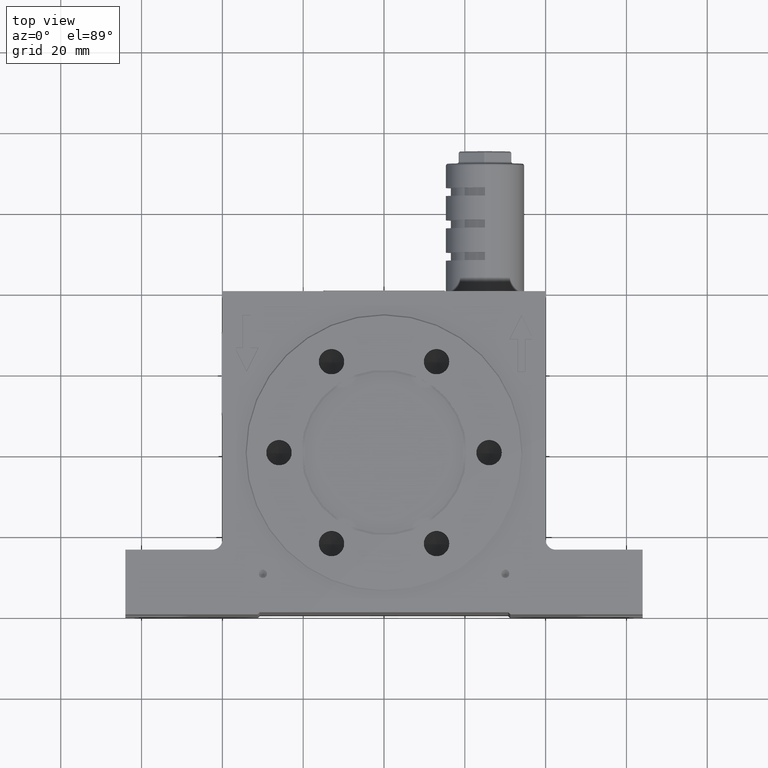
[diagram: clean part render]
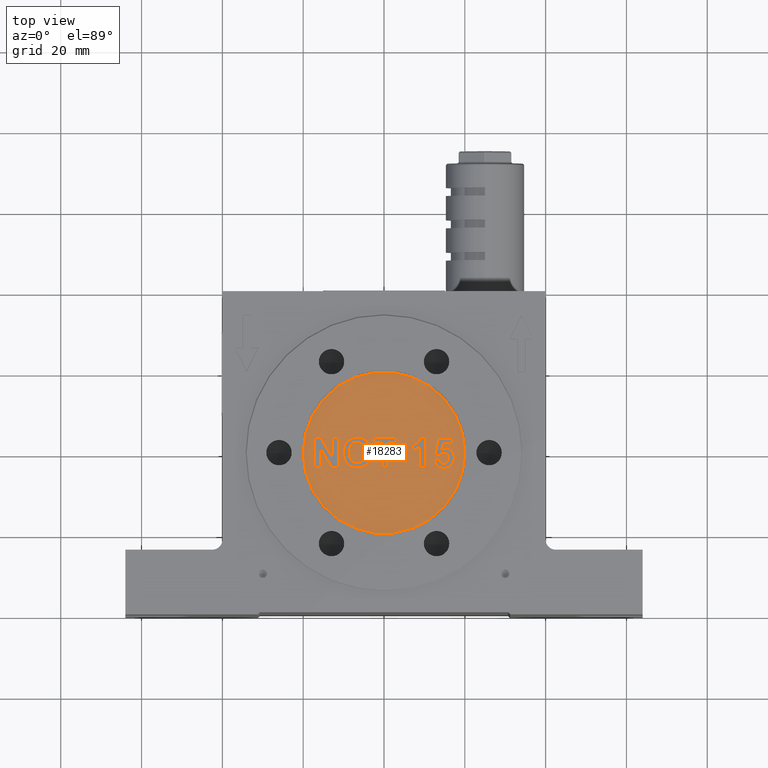
[diagram: same view with one face highlighted and labeled with its STEP entity id]
A machine part, top view. The second image highlights one B-rep face of the part: STEP entity #18283.
In plain terms, the highlighted planar face has unit normal (0, 0, 1).
Its self-contained STEP definition (entity closure, byte-faithful):
#11 = ORIENTED_EDGE ( 'NONE', *, *, #15352, .T. ) ;
#33 = CARTESIAN_POINT ( 'NONE',  ( -10.01128910515375900, 0.4212739822728339700, 27.94999999999999900 ) ) ;
#104 = CARTESIAN_POINT ( 'NONE',  ( -9.964965141578980800, 0.8420871372586651300, 27.94999999999999900 ) ) ;
#126 = CARTESIAN_POINT ( 'NONE',  ( 15.94092875022719900, -1.360701149579270000, 27.94999999999999900 ) ) ;
#179 = VERTEX_POINT ( 'NONE', #14232 ) ;
#182 = CARTESIAN_POINT ( 'NONE',  ( -8.263640556745210500, 3.455302835553485200, 27.94999999999999900 ) ) ;
#225 = CARTESIAN_POINT ( 'NONE',  ( 8.208965623745200400, 1.036394658030426000, 27.94999999999999900 ) ) ;
#358 = CARTESIAN_POINT ( 'NONE',  ( -6.219223467663169900, 3.837890305908345100, 27.94999999999999900 ) ) ;
#375 = VECTOR ( 'NONE', #16269, 1000.000000000000000 ) ;
#404 = B_SPLINE_CURVE_WITH_KNOTS ( 'NONE', 3,
 ( #22435, #15915, #33, #104, #3505, #15760, #21066, #19446, #6909, #5422, #12372, #10444, #182, #19518, #19214, #17764, #17618, #19365, #3739 ),
 .UNSPECIFIED., .F., .F.,
 ( 4, 1, 1, 1, 1, 1, 1, 1, 1, 1, 1, 1, 1, 1, 1, 1, 4 ),
 ( 0.0000000000000000000, 0.07579051948909590300, 0.1478534747076593900, 0.2160625612839164900, 0.2815137391824180100, 0.3441472867208709700, 0.4050398480292135000, 0.4648719310626840400, 0.5240790728485270600, 0.5827249968329570900, 0.6403617283199160000, 0.6973287607626790200, 0.7546841663265050300, 0.8131130606049220600, 0.8730146042387290100, 0.9351953611967559500, 1.000000000000000000 ),
 .UNSPECIFIED. ) ;
#421 = EDGE_CURVE ( 'NONE', #13818, #22356, #13406, .T. ) ;
#439 = DIRECTION ( 'NONE',  ( 1.000000000000000000, 0.0000000000000000000, 0.0000000000000000000 ) ) ;
#551 = FACE_BOUND ( 'NONE', #16151, .T. ) ;
#648 = CARTESIAN_POINT ( 'NONE',  ( -6.547175480769239700, 3.846153846153844500, 27.94999999999999900 ) ) ;
#655 = CARTESIAN_POINT ( 'NONE',  ( -9.965022111787408900, -0.8323188812456699900, 27.94999999999999900 ) ) ;
#722 = CARTESIAN_POINT ( 'NONE',  ( 14.37972719482090200, 0.9161921809200949100, 27.94999999999999900 ) ) ;
#728 = VERTEX_POINT ( 'NONE', #16696 ) ;
#762 = LINE ( 'NONE', #16764, #17789 ) ;
#829 = LINE ( 'NONE', #20859, #22501 ) ;
#850 = ORIENTED_EDGE ( 'NONE', *, *, #19320, .T. ) ;
#886 = CARTESIAN_POINT ( 'NONE',  ( 14.59980162896472000, -0.1293547606415370000, 27.94999999999999900 ) ) ;
#985 = CARTESIAN_POINT ( 'NONE',  ( -7.246501042174129400, 2.518022993422969900, 27.94999999999999900 ) ) ;
#1013 = CARTESIAN_POINT ( 'NONE',  ( -6.656850961538470600, -2.500000000000000000, 27.94999999999999900 ) ) ;
#1054 = CARTESIAN_POINT ( 'NONE',  ( -7.055526890991280300, 2.561100391421850200, 27.94999999999999900 ) ) ;
#1070 = CARTESIAN_POINT ( 'NONE',  ( 15.31273893670800000, -0.1687803572036920300, 27.94999999999999900 ) ) ;
#1086 = CARTESIAN_POINT ( 'NONE',  ( -5.360303692573240600, -1.916980055709324800, 27.94999999999999900 ) ) ;
#1095 = ORIENTED_EDGE ( 'NONE', *, *, #21781, .T. ) ;
#1101 = CARTESIAN_POINT ( 'NONE',  ( -6.863112709624069800, -2.495517661331039700, 27.94999999999999900 ) ) ;
#1127 = EDGE_CURVE ( 'NONE', #15032, #179, #12563, .T. ) ;
#1153 = CARTESIAN_POINT ( 'NONE',  ( 16.23301560035280400, -3.473445316482625300, 27.94999999999999900 ) ) ;
#1185 = CARTESIAN_POINT ( 'NONE',  ( -6.598257211538469700, -3.750000000000000000, 27.94999999999999900 ) ) ;
#1201 = CARTESIAN_POINT ( 'NONE',  ( -8.172078310983641500, 1.846044006969670200, 27.94999999999999900 ) ) ;
#1214 = CARTESIAN_POINT ( 'NONE',  ( -4.335637019230774500, 3.025841346153844900, 27.94999999999999900 ) ) ;
#1237 = CARTESIAN_POINT ( 'NONE',  ( 7.000000000000000000, 1.826923076923074900, 27.94999999999999900 ) ) ;
#1243 = ORIENTED_EDGE ( 'NONE', *, *, #3092, .T. ) ;
#1244 = LINE ( 'NONE', #11628, #2362 ) ;
#1254 = CARTESIAN_POINT ( 'NONE',  ( -3.793407822671775300, -2.233483577691360200, 27.94999999999999900 ) ) ;
#1386 = CARTESIAN_POINT ( 'NONE',  ( -5.031489791707460100, 1.393461622089166000, 27.94999999999999900 ) ) ;
#1396 = CARTESIAN_POINT ( 'NONE',  ( -7.062392780359970400, -2.465901992212180100, 27.94999999999999900 ) ) ;
#1415 = VECTOR ( 'NONE', #8672, 1000.000000000000000 ) ;
#1441 = LINE ( 'NONE', #12141, #11306 ) ;
#1455 = CARTESIAN_POINT ( 'NONE',  ( -5.590531678012710300, 2.262845423000555000, 27.94999999999999900 ) ) ;
#1510 = CARTESIAN_POINT ( 'NONE',  ( 14.83954326923075900, -3.846153846153844500, 27.94999999999999900 ) ) ;
#1517 = CARTESIAN_POINT ( 'NONE',  ( -3.888593012415559900, 2.435589112709684900, 27.94999999999999900 ) ) ;
#1609 = EDGE_LOOP ( 'NONE', ( #13845, #6194, #18179, #18012, #7278, #1095, #7757, #21033, #4131, #16936, #14109, #6116, #18347, #14923, #8173, #4689 ) ) ;
#1622 = CARTESIAN_POINT ( 'NONE',  ( -5.019230769230770100, 1.346153846153845800, 27.94999999999999900 ) ) ;
#1686 = CARTESIAN_POINT ( 'NONE',  ( 7.983602819228590200, 0.8797793213388560600, 27.94999999999999900 ) ) ;
#1698 = VERTEX_POINT ( 'NONE', #8984 ) ;
#1705 = DIRECTION ( 'NONE',  ( -1.000000000000000000, 0.0000000000000000000, 0.0000000000000000000 ) ) ;
#1815 = ORIENTED_EDGE ( 'NONE', *, *, #15379, .T. ) ;
#1839 = CARTESIAN_POINT ( 'NONE',  ( 7.000000000000000000, 0.3846153846153849700, 27.94999999999999900 ) ) ;
#1922 = ORIENTED_EDGE ( 'NONE', *, *, #18080, .T. ) ;
#1945 = CARTESIAN_POINT ( 'NONE',  ( 16.25228978776050300, 0.8923697364172100700, 27.94999999999999900 ) ) ;
#1968 = B_SPLINE_CURVE_WITH_KNOTS ( 'NONE', 3,
 ( #1013, #11421, #8117, #6280, #4486, #18457, #21978, #6205, #6354, #4416, #18673, #1086, #11653, #13436, #9661, #15208, #13283, #20204, #2941 ),
 .UNSPECIFIED., .F., .F.,
 ( 4, 1, 1, 1, 1, 1, 1, 1, 1, 1, 1, 1, 1, 1, 1, 1, 4 ),
 ( 0.0000000000000000000, 0.06126111103095140100, 0.1204608798674912000, 0.1787406227206214900, 0.2357241107740769800, 0.2917921544355335200, 0.3484056260215540000, 0.4049785290093259600, 0.4622711074623400100, 0.5207595708992949200, 0.5805293807501560300, 0.6425782181377470700, 0.7074054357165919800, 0.7749203007763200100, 0.8463302752413620600, 0.9211343755677539000, 1.000000000000000000 ),
 .UNSPECIFIED. ) ;
#1976 = CARTESIAN_POINT ( 'NONE',  ( -4.789928333937190500, 3.389132674384475000, 27.94999999999999900 ) ) ;
#1989 = LINE ( 'NONE', #16363, #15150 ) ;
#2022 = CARTESIAN_POINT ( 'NONE',  ( -17.23076923076925100, -3.750000000000000000, 27.94999999999999900 ) ) ;
#2047 = CARTESIAN_POINT ( 'NONE',  ( 14.77944711538460100, -2.596153846153844900, 27.94999999999999900 ) ) ;
#2137 = VERTEX_POINT ( 'NONE', #8735 ) ;
#2157 = DIRECTION ( 'NONE',  ( 0.0000000000000000000, 0.0000000000000000000, 1.000000000000000000 ) ) ;
#2172 = VECTOR ( 'NONE', #4753, 1000.000000000000100 ) ;
#2196 = CARTESIAN_POINT ( 'NONE',  ( 15.15174096202470000, 1.150251234337250000, 27.94999999999999900 ) ) ;
#2204 = CARTESIAN_POINT ( 'NONE',  ( -9.062608164129999400, -2.754319449616614800, 27.94999999999999900 ) ) ;
#2289 = EDGE_CURVE ( 'NONE', #8592, #7792, #13895, .T. ) ;
#2314 = ORIENTED_EDGE ( 'NONE', *, *, #11735, .T. ) ;
#2319 = VERTEX_POINT ( 'NONE', #10545 ) ;
#2362 = VECTOR ( 'NONE', #15108, 999.9999999999998900 ) ;
#2418 = CARTESIAN_POINT ( 'NONE',  ( 14.88611778846151900, -0.09615384615384610400, 27.94999999999999900 ) ) ;
#2425 = ORIENTED_EDGE ( 'NONE', *, *, #2289, .T. ) ;
#2484 = FACE_OUTER_BOUND ( 'NONE', #9354, .T. ) ;
#2506 = CARTESIAN_POINT ( 'NONE',  ( 13.94991030293488000, -0.5384942328685699000, 27.94999999999999900 ) ) ;
#2514 = CARTESIAN_POINT ( 'NONE',  ( 14.99366246120703900, 1.143005295304380100, 27.94999999999999900 ) ) ;
#2521 = CARTESIAN_POINT ( 'NONE',  ( -7.962507236710971300, -3.506994418288219800, 27.94999999999999900 ) ) ;
#2780 = CARTESIAN_POINT ( 'NONE',  ( 15.65089889026309900, -0.3986152012878045300, 27.94999999999999900 ) ) ;
#2782 = CARTESIAN_POINT ( 'NONE',  ( 17.38260320244925000, -1.350709195309850000, 27.94999999999999900 ) ) ;
#2811 = CARTESIAN_POINT ( 'NONE',  ( -6.656850961538470600, -2.500000000000000000, 27.94999999999999900 ) ) ;
#2843 = CARTESIAN_POINT ( 'NONE',  ( -8.506475674465289000, 0.9765157764254579500, 27.94999999999999900 ) ) ;
#2857 = CARTESIAN_POINT ( 'NONE',  ( 17.31163920632549800, -1.923277243707725000, 27.94999999999999900 ) ) ;
#2863 = CARTESIAN_POINT ( 'NONE',  ( 15.44536321099450000, -3.791909194511685000, 27.94999999999999900 ) ) ;
#2906 = CARTESIAN_POINT ( 'NONE',  ( -8.575004276538711800, 0.1993576927786155100, 27.94999999999999900 ) ) ;
#2938 = CARTESIAN_POINT ( 'NONE',  ( 14.94388194710696100, -3.843409246252455200, 27.94999999999999900 ) ) ;
#2941 = CARTESIAN_POINT ( 'NONE',  ( -4.923076923076930500, -0.9615384615384619000, 27.94999999999999900 ) ) ;
#2947 = CARTESIAN_POINT ( 'NONE',  ( 0.0000000000000000000, 0.0000000000000000000, 27.94999999999999900 ) ) ;
#2948 = CARTESIAN_POINT ( 'NONE',  ( 7.096053425275919800, 1.862938989497650000, 27.94999999999999900 ) ) ;
#2967 = CARTESIAN_POINT ( 'NONE',  ( -15.72385817307694800, 3.750000000000000000, 27.94999999999999900 ) ) ;
#3020 = CARTESIAN_POINT ( 'NONE',  ( 9.112379807692301300, 3.750000000000000000, 27.94999999999999900 ) ) ;
#3035 = ORIENTED_EDGE ( 'NONE', *, *, #19641, .T. ) ;
#3061 = CARTESIAN_POINT ( 'NONE',  ( -6.718074567516849200, 2.594735358073659600, 27.94999999999999900 ) ) ;
#3092 = EDGE_CURVE ( 'NONE', #2137, #15525, #16699, .T. ) ;
#3106 = CARTESIAN_POINT ( 'NONE',  ( 14.59915865384613900, 2.211538461538459900, 27.94999999999999900 ) ) ;
#3146 = CARTESIAN_POINT ( 'NONE',  ( 14.59087905192416000, -3.841662315393995300, 27.94999999999999900 ) ) ;
#3173 = CARTESIAN_POINT ( 'NONE',  ( 17.09615384615385000, 3.653846153846155100, 27.94999999999999900 ) ) ;
#3230 = EDGE_CURVE ( 'NONE', #22591, #728, #13677, .T. ) ;
#3235 = CARTESIAN_POINT ( 'NONE',  ( -3.576923076923079800, 1.634615384615385000, 27.94999999999999900 ) ) ;
#3254 = EDGE_LOOP ( 'NONE', ( #12060, #20222, #1815, #1243, #19941, #10238, #14229, #11 ) ) ;
#3258 = VECTOR ( 'NONE', #20580, 1000.000000000000000 ) ;
#3271 = CARTESIAN_POINT ( 'NONE',  ( -4.923076923076930500, -0.9615384615384619000, 27.94999999999999900 ) ) ;
#3301 = CARTESIAN_POINT ( 'NONE',  ( 14.59915865384613900, 2.211538461538459900, 27.94999999999999900 ) ) ;
#3314 = CARTESIAN_POINT ( 'NONE',  ( -3.988365434311119900, 2.602880793317179800, 27.94999999999999900 ) ) ;
#3401 = CARTESIAN_POINT ( 'NONE',  ( 7.086608715037839600, 0.4180584853843294900, 27.94999999999999900 ) ) ;
#3405 = CARTESIAN_POINT ( 'NONE',  ( -5.160539441909470800, 1.747604975627565100, 27.94999999999999900 ) ) ;
#3462 = CARTESIAN_POINT ( 'NONE',  ( 9.112379807692301300, 3.750000000000000000, 27.94999999999999900 ) ) ;
#3498 = VERTEX_POINT ( 'NONE', #13782 ) ;
#3505 = CARTESIAN_POINT ( 'NONE',  ( -9.893049946967840600, 1.238679003987271700, 27.94999999999999900 ) ) ;
#3591 = FACE_BOUND ( 'NONE', #10304, .T. ) ;
#3653 = EDGE_CURVE ( 'NONE', #22164, #18278, #762, .T. ) ;
#3686 = CARTESIAN_POINT ( 'NONE',  ( 14.81956119859240000, -2.595449085333944700, 27.94999999999999900 ) ) ;
#3739 = CARTESIAN_POINT ( 'NONE',  ( -6.547175480769239700, 3.846153846153844500, 27.94999999999999900 ) ) ;
#3760 = CARTESIAN_POINT ( 'NONE',  ( 15.60609807227565000, -2.277218674814184900, 27.94999999999999900 ) ) ;
#3765 = CARTESIAN_POINT ( 'NONE',  ( -6.547175480769239700, 3.846153846153844500, 27.94999999999999900 ) ) ;
#3778 = LINE ( 'NONE', #7951, #7048 ) ;
#3837 = CARTESIAN_POINT ( 'NONE',  ( 15.81297255053769700, -1.988812955587065100, 27.94999999999999900 ) ) ;
#3882 = LINE ( 'NONE', #4086, #21429 ) ;
#3910 = CARTESIAN_POINT ( 'NONE',  ( -4.407937983977380000, 3.091541646061795500, 27.94999999999999900 ) ) ;
#3926 = ORIENTED_EDGE ( 'NONE', *, *, #20428, .T. ) ;
#3966 = B_SPLINE_CURVE_WITH_KNOTS ( 'NONE', 3,
 ( #6541, #3061, #9995, #1054, #985, #15320, #11691, #20465, #6465, #4675, #1201, #13322, #4805, #11623, #2843, #4599, #4740, #2906, #22296 ),
 .UNSPECIFIED., .F., .F.,
 ( 4, 1, 1, 1, 1, 1, 1, 1, 1, 1, 1, 1, 1, 1, 1, 1, 4 ),
 ( 0.0000000000000000000, 0.05863713785793300100, 0.1144421474108320000, 0.1690482052544514900, 0.2219952735496025000, 0.2747684321805555200, 0.3268888808506644800, 0.3804769582634819900, 0.4349208394101354800, 0.4912567423742030300, 0.5503904738002429700, 0.6127623717388949200, 0.6797200153273650300, 0.7510744632463950400, 0.8281288448344780200, 0.9112525307144459000, 1.000000000000000000 ),
 .UNSPECIFIED. ) ;
#3982 = ORIENTED_EDGE ( 'NONE', *, *, #12198, .T. ) ;
#4033 = ORIENTED_EDGE ( 'NONE', *, *, #8079, .T. ) ;
#4086 = CARTESIAN_POINT ( 'NONE',  ( 7.000000000000000000, 0.3846153846153849700, 27.94999999999999900 ) ) ;
#4131 = ORIENTED_EDGE ( 'NONE', *, *, #22509, .T. ) ;
#4143 = EDGE_CURVE ( 'NONE', #20061, #20674, #22744, .T. ) ;
#4166 = CARTESIAN_POINT ( 'NONE',  ( 8.826923076923069500, -3.750000000000000000, 27.94999999999999900 ) ) ;
#4265 = CARTESIAN_POINT ( 'NONE',  ( 14.83791655550896000, -0.09788193108061010700, 27.94999999999999900 ) ) ;
#4275 = CARTESIAN_POINT ( 'NONE',  ( -9.483833119839490100, -2.206434466156155200, 27.94999999999999900 ) ) ;
#4416 = CARTESIAN_POINT ( 'NONE',  ( -5.571607049990119800, -2.129774914430609700, 27.94999999999999900 ) ) ;
#4435 = VECTOR ( 'NONE', #19344, 1000.000000000000000 ) ;
#4486 = CARTESIAN_POINT ( 'NONE',  ( -6.209732851950730200, -2.449438661725709600, 27.94999999999999900 ) ) ;
#4558 = EDGE_CURVE ( 'NONE', #7353, #3498, #3778, .T. ) ;
#4561 = CARTESIAN_POINT ( 'NONE',  ( -0.5000000000000000000, -3.750000000000000000, 27.94999999999999900 ) ) ;
#4589 = LINE ( 'NONE', #18899, #17210 ) ;
#4599 = CARTESIAN_POINT ( 'NONE',  ( -8.548208667364940900, 0.7023147038986720100, 27.94999999999999900 ) ) ;
#4675 = CARTESIAN_POINT ( 'NONE',  ( -8.046676975117669900, 2.006776393095635000, 27.94999999999999900 ) ) ;
#4689 = ORIENTED_EDGE ( 'NONE', *, *, #7564, .T. ) ;
#4740 = CARTESIAN_POINT ( 'NONE',  ( -8.571288267042920200, 0.4050447309894394400, 27.94999999999999900 ) ) ;
#4744 = CARTESIAN_POINT ( 'NONE',  ( 12.86537959124894000, -2.909966183426410300, 27.94999999999999900 ) ) ;
#4753 = DIRECTION ( 'NONE',  ( -0.9805806756909201100, -0.1961161351381840400, 0.0000000000000000000 ) ) ;
#4793 = CARTESIAN_POINT ( 'NONE',  ( -3.924720547308719400, -2.462903268485519900, 27.94999999999999900 ) ) ;
#4805 = CARTESIAN_POINT ( 'NONE',  ( -8.373782653894329200, 1.456596290318302100, 27.94999999999999900 ) ) ;
#4846 = CARTESIAN_POINT ( 'NONE',  ( -8.282693296248680800, -1.553845418637150000, 27.94999999999999900 ) ) ;
#4857 = VERTEX_POINT ( 'NONE', #16003 ) ;
#4870 = CARTESIAN_POINT ( 'NONE',  ( 14.30468750000000000, 0.8728966346153850300, 27.94999999999999900 ) ) ;
#4882 = VERTEX_POINT ( 'NONE', #19376 ) ;
#4893 = CARTESIAN_POINT ( 'NONE',  ( 12.54868317760518100, -2.314266273711195000, 27.94999999999999900 ) ) ;
#4921 = CARTESIAN_POINT ( 'NONE',  ( -6.647836538461540100, 2.596153846153844900, 27.94999999999999900 ) ) ;
#4924 = DIRECTION ( 'NONE',  ( 0.0000000000000000000, 0.0000000000000000000, 1.000000000000000000 ) ) ;
#4949 = CARTESIAN_POINT ( 'NONE',  ( -6.306681717823170900, -3.745327961385475300, 27.94999999999999900 ) ) ;
#5010 = EDGE_CURVE ( 'NONE', #22356, #21168, #18125, .T. ) ;
#5070 = CARTESIAN_POINT ( 'NONE',  ( 14.37522036710997900, -2.523546166546450000, 27.94999999999999900 ) ) ;
#5116 = LINE ( 'NONE', #19167, #12511 ) ;
#5136 = LINE ( 'NONE', #18971, #21056 ) ;
#5161 = CARTESIAN_POINT ( 'NONE',  ( -6.072901870499280500, 2.513695224527325000, 27.94999999999999900 ) ) ;
#5167 = VERTEX_POINT ( 'NONE', #15839 ) ;
#5181 = CARTESIAN_POINT ( 'NONE',  ( 17.38238599797739800, -1.189337108311507900, 27.94999999999999900 ) ) ;
#5242 = CARTESIAN_POINT ( 'NONE',  ( -5.055636849674709900, 1.486645528879804200, 27.94999999999999900 ) ) ;
#5287 = DIRECTION ( 'NONE',  ( 1.000000000000000000, 0.0000000000000000000, 0.0000000000000000000 ) ) ;
#5291 = EDGE_CURVE ( 'NONE', #19711, #19674, #10218, .T. ) ;
#5340 = CARTESIAN_POINT ( 'NONE',  ( 17.03462317810864900, 0.1156538011922340100, 27.94999999999999900 ) ) ;
#5364 = EDGE_CURVE ( 'NONE', #2319, #14364, #18700, .T. ) ;
#5413 = CARTESIAN_POINT ( 'NONE',  ( 17.38461538461539700, -1.277043269230770100, 27.94999999999999900 ) ) ;
#5422 = CARTESIAN_POINT ( 'NONE',  ( -9.069103844247861100, 2.834192604781965200, 27.94999999999999900 ) ) ;
#5440 = CARTESIAN_POINT ( 'NONE',  ( 15.94230769230770100, -1.308593750000000000, 27.94999999999999900 ) ) ;
#5443 = CARTESIAN_POINT ( 'NONE',  ( -4.335637019230774500, 3.025841346153844900, 27.94999999999999900 ) ) ;
#5455 = VERTEX_POINT ( 'NONE', #15436 ) ;
#5652 = CARTESIAN_POINT ( 'NONE',  ( 15.12434237105135000, -2.552967473745144700, 27.94999999999999900 ) ) ;
#5757 = ORIENTED_EDGE ( 'NONE', *, *, #16914, .T. ) ;
#5810 = EDGE_LOOP ( 'NONE', ( #17105, #18082, #21553, #8542, #16403, #4033, #17094, #20353, #15616, #3926 ) ) ;
#5960 = EDGE_CURVE ( 'NONE', #7752, #20061, #12747, .T. ) ;
#6102 = ORIENTED_EDGE ( 'NONE', *, *, #18395, .T. ) ;
#6111 = VECTOR ( 'NONE', #11807, 1000.000000000000000 ) ;
#6116 = ORIENTED_EDGE ( 'NONE', *, *, #13674, .T. ) ;
#6190 = CARTESIAN_POINT ( 'NONE',  ( 15.94002109969409800, -1.164548986217734100, 27.94999999999999900 ) ) ;
#6194 = ORIENTED_EDGE ( 'NONE', *, *, #18691, .T. ) ;
#6205 = CARTESIAN_POINT ( 'NONE',  ( -5.810156103053410300, -2.292722394728174500, 27.94999999999999900 ) ) ;
#6213 = CARTESIAN_POINT ( 'NONE',  ( 8.163500881132870600, 2.491852818559904900, 27.94999999999999900 ) ) ;
#6266 = CARTESIAN_POINT ( 'NONE',  ( 15.10866183751474900, -0.1144210029185702000, 27.94999999999999900 ) ) ;
#6278 = VECTOR ( 'NONE', #14595, 1000.000000000000000 ) ;
#6280 = CARTESIAN_POINT ( 'NONE',  ( -6.353720164681030600, -2.480108665871865200, 27.94999999999999900 ) ) ;
#6298 = CARTESIAN_POINT ( 'NONE',  ( -8.174150260800489700, -1.742380050388805200, 27.94999999999999900 ) ) ;
#6309 = LINE ( 'NONE', #9575, #7706 ) ;
#6354 = CARTESIAN_POINT ( 'NONE',  ( -5.687443325029120100, -2.217697887727974900, 27.94999999999999900 ) ) ;
#6403 = CARTESIAN_POINT ( 'NONE',  ( 14.35005421563285900, -3.812288313882935300, 27.94999999999999900 ) ) ;
#6465 = CARTESIAN_POINT ( 'NONE',  ( -7.906932874606999600, 2.145871071588804700, 27.94999999999999900 ) ) ;
#6482 = CARTESIAN_POINT ( 'NONE',  ( 15.72120280880740000, -0.4781022654408380600, 27.94999999999999900 ) ) ;
#6494 = CARTESIAN_POINT ( 'NONE',  ( 14.57324914707263900, -2.585258752218395200, 27.94999999999999900 ) ) ;
#6499 = CARTESIAN_POINT ( 'NONE',  ( 10.26923076923075900, 3.750000000000000000, 27.94999999999999900 ) ) ;
#6527 = CARTESIAN_POINT ( 'NONE',  ( -4.235798506715375400, -2.861119860854725200, 27.94999999999999900 ) ) ;
#6531 = CARTESIAN_POINT ( 'NONE',  ( -15.78846153846154900, 1.102764423076922000, 27.94999999999999900 ) ) ;
#6541 = CARTESIAN_POINT ( 'NONE',  ( -6.647836538461540100, 2.596153846153844900, 27.94999999999999900 ) ) ;
#6552 = CARTESIAN_POINT ( 'NONE',  ( 12.74297813055824100, -2.724812796433634600, 27.94999999999999900 ) ) ;
#6562 = CARTESIAN_POINT ( 'NONE',  ( 9.112379807692301300, 3.750000000000000000, 27.94999999999999900 ) ) ;
#6586 = CARTESIAN_POINT ( 'NONE',  ( -6.726568493419479800, -2.498484946472360000, 27.94999999999999900 ) ) ;
#6594 = DIRECTION ( 'NONE',  ( 0.9486832980505137700, -0.3162277660168380000, 0.0000000000000000000 ) ) ;
#6600 = CARTESIAN_POINT ( 'NONE',  ( -4.602521192557560400, -3.185055913099029900, 27.94999999999999900 ) ) ;
#6653 = CARTESIAN_POINT ( 'NONE',  ( 13.83593750000000000, -0.6730769230769229100, 27.94999999999999900 ) ) ;
#6675 = CARTESIAN_POINT ( 'NONE',  ( -4.074988372072405200, -2.669831605057559900, 27.94999999999999900 ) ) ;
#6681 = DIRECTION ( 'NONE',  ( 0.2041524011832624700, 0.9789391181739078900, 0.0000000000000000000 ) ) ;
#6820 = LINE ( 'NONE', #17990, #6278 ) ;
#6837 = VERTEX_POINT ( 'NONE', #13518 ) ;
#6845 = EDGE_CURVE ( 'NONE', #3498, #14214, #10232, .T. ) ;
#6878 = CARTESIAN_POINT ( 'NONE',  ( -5.818771481692509800, 2.410485924808110100, 27.94999999999999900 ) ) ;
#6899 = CARTESIAN_POINT ( 'NONE',  ( 16.06486849277974800, 0.9890381467910981400, 27.94999999999999900 ) ) ;
#6909 = CARTESIAN_POINT ( 'NONE',  ( -9.293967868492149600, 2.567808087123610000, 27.94999999999999900 ) ) ;
#6962 = CARTESIAN_POINT ( 'NONE',  ( -6.596691643050840000, 2.595645621846954600, 27.94999999999999900 ) ) ;
#6984 = CARTESIAN_POINT ( 'NONE',  ( 17.29976714891029800, -0.5263823631226860500, 27.94999999999999900 ) ) ;
#7014 = CARTESIAN_POINT ( 'NONE',  ( 15.23075370858850000, -2.518437915682830000, 27.94999999999999900 ) ) ;
#7038 = CARTESIAN_POINT ( 'NONE',  ( -2.711538461538465200, 3.750000000000000000, 27.94999999999999900 ) ) ;
#7048 = VECTOR ( 'NONE', #7790, 1000.000000000000000 ) ;
#7056 = CARTESIAN_POINT ( 'NONE',  ( -11.26923076923077900, 3.750000000000000000, 27.94999999999999900 ) ) ;
#7067 = CARTESIAN_POINT ( 'NONE',  ( 15.23016826923074900, 1.153846153846154200, 27.94999999999999900 ) ) ;
#7094 = CARTESIAN_POINT ( 'NONE',  ( 15.92409845390135100, -1.608606770955515000, 27.94999999999999900 ) ) ;
#7104 = ORIENTED_EDGE ( 'NONE', *, *, #1127, .T. ) ;
#7148 = CARTESIAN_POINT ( 'NONE',  ( 15.30389660369879900, 1.151862096680050100, 27.94999999999999900 ) ) ;
#7258 = CARTESIAN_POINT ( 'NONE',  ( -5.599771184079049400, 3.735462738451464500, 27.94999999999999900 ) ) ;
#7265 = B_SPLINE_CURVE_WITH_KNOTS ( 'NONE', 3,
 ( #8045, #2782, #16805, #9798, #2857, #15120, #18661, #8108, #20417, #9868, #13424 ),
 .UNSPECIFIED., .F., .F.,
 ( 4, 1, 1, 1, 1, 1, 1, 1, 4 ),
 ( 0.0000000000000000000, 0.1284406196239576100, 0.2549289633384355100, 0.3787161337322235100, 0.5019943023285449200, 0.6244069801949359000, 0.7481941505887229600, 0.8726200048729009200, 1.000000000000000000 ),
 .UNSPECIFIED. ) ;
#7278 = ORIENTED_EDGE ( 'NONE', *, *, #12162, .T. ) ;
#7353 = VERTEX_POINT ( 'NONE', #20488 ) ;
#7411 = LINE ( 'NONE', #13071, #13182 ) ;
#7415 = CARTESIAN_POINT ( 'NONE',  ( 0.9423076923076870700, 2.500000000000000000, 27.94999999999999900 ) ) ;
#7435 = VERTEX_POINT ( 'NONE', #15204 ) ;
#7485 = CARTESIAN_POINT ( 'NONE',  ( -6.436404573183780000, 3.843362706547190000, 27.94999999999999900 ) ) ;
#7564 = EDGE_CURVE ( 'NONE', #11143, #21394, #7265, .T. ) ;
#7580 = VERTEX_POINT ( 'NONE', #18876 ) ;
#7613 = CARTESIAN_POINT ( 'NONE',  ( 13.83593750000000000, -0.6730769230769229100, 27.94999999999999900 ) ) ;
#7627 = CARTESIAN_POINT ( 'NONE',  ( -10.01125945548949900, -0.4318373920834580000, 27.94999999999999900 ) ) ;
#7688 = CARTESIAN_POINT ( 'NONE',  ( 14.32739278696083900, -0.2384937481480884900, 27.94999999999999900 ) ) ;
#7699 = CARTESIAN_POINT ( 'NONE',  ( -10.01923076923077900, -0.01652644230769200300, 27.94999999999999900 ) ) ;
#7706 = VECTOR ( 'NONE', #16584, 1000.000000000000000 ) ;
#7733 = CARTESIAN_POINT ( 'NONE',  ( 0.9423076923076870700, -3.750000000000000000, 27.94999999999999900 ) ) ;
#7752 = VERTEX_POINT ( 'NONE', #7038 ) ;
#7757 = ORIENTED_EDGE ( 'NONE', *, *, #5291, .T. ) ;
#7790 = DIRECTION ( 'NONE',  ( 1.000000000000000000, 0.0000000000000000000, 0.0000000000000000000 ) ) ;
#7792 = VERTEX_POINT ( 'NONE', #17527 ) ;
#7797 = EDGE_CURVE ( 'NONE', #15618, #14879, #9341, .T. ) ;
#7819 = CARTESIAN_POINT ( 'NONE',  ( 3.153846153846149700, 3.750000000000000000, 27.94999999999999900 ) ) ;
#7833 = CARTESIAN_POINT ( 'NONE',  ( 13.87471683263212100, -0.6272850606700759400, 27.94999999999999900 ) ) ;
#7947 = ORIENTED_EDGE ( 'NONE', *, *, #13741, .T. ) ;
#7951 = CARTESIAN_POINT ( 'NONE',  ( 13.44230769230769900, 3.653846153846155100, 27.94999999999999900 ) ) ;
#7970 = CARTESIAN_POINT ( 'NONE',  ( 15.57429635146420000, -0.3283832868513355000, 27.94999999999999900 ) ) ;
#7994 = CARTESIAN_POINT ( 'NONE',  ( 8.370023056678499900, 2.664949466588970100, 27.94999999999999900 ) ) ;
#8045 = CARTESIAN_POINT ( 'NONE',  ( 17.38461538461539700, -1.277043269230770100, 27.94999999999999900 ) ) ;
#8053 = CARTESIAN_POINT ( 'NONE',  ( 16.79079968510859900, -2.958185638237320200, 27.94999999999999900 ) ) ;
#8079 = EDGE_CURVE ( 'NONE', #16871, #15618, #6309, .T. ) ;
#8095 = VECTOR ( 'NONE', #13566, 1000.000000000000000 ) ;
#8108 = CARTESIAN_POINT ( 'NONE',  ( 17.08820542911994900, -2.518261010391255300, 27.94999999999999900 ) ) ;
#8117 = CARTESIAN_POINT ( 'NONE',  ( -6.503738819154639500, -2.496180094116779500, 27.94999999999999900 ) ) ;
#8123 = B_SPLINE_CURVE_WITH_KNOTS ( 'NONE', 3,
 ( #1510, #20628, #3146, #6403, #17080, #22462, #18722, #11699, #13489, #10166, #15256, #4744, #6552, #8398, #4893, #18863, #8324, #22695, #12158 ),
 .UNSPECIFIED., .F., .F.,
 ( 4, 1, 1, 1, 1, 1, 1, 1, 1, 1, 1, 1, 1, 1, 1, 1, 4 ),
 ( 0.0000000000000000000, 0.06868200889000940200, 0.1341053709709393900, 0.1975679288876489900, 0.2586952636031315000, 0.3189424287643815000, 0.3783525933343505100, 0.4377332491936454800, 0.4977361043058620100, 0.5581216416410229600, 0.6177169549675990400, 0.6778878797972680600, 0.7389318705068550500, 0.8010022243488660300, 0.8649586617602209600, 0.9313520245996549400, 1.000000000000000000 ),
 .UNSPECIFIED. ) ;
#8147 = CARTESIAN_POINT ( 'NONE',  ( -5.497804126556079800, -3.611160338590119900, 27.94999999999999900 ) ) ;
#8155 = LINE ( 'NONE', #18450, #8983 ) ;
#8156 = ORIENTED_EDGE ( 'NONE', *, *, #14510, .T. ) ;
#8158 = VECTOR ( 'NONE', #15547, 1000.000000000000000 ) ;
#8173 = ORIENTED_EDGE ( 'NONE', *, *, #11193, .T. ) ;
#8251 = CARTESIAN_POINT ( 'NONE',  ( 15.90458072043395000, -0.8984886229732029800, 27.94999999999999900 ) ) ;
#8324 = CARTESIAN_POINT ( 'NONE',  ( 12.41889347559123800, -1.852037955267550100, 27.94999999999999900 ) ) ;
#8352 = DIRECTION ( 'NONE',  ( 0.0000000000000000000, 1.000000000000000000, 0.0000000000000000000 ) ) ;
#8358 = CARTESIAN_POINT ( 'NONE',  ( -8.506287784138059700, -0.8381574128152680100, 27.94999999999999900 ) ) ;
#8398 = CARTESIAN_POINT ( 'NONE',  ( 12.63808063546983900, -2.525780884389905000, 27.94999999999999900 ) ) ;
#8413 = CARTESIAN_POINT ( 'NONE',  ( -4.208938638556505300, 2.899442054980685400, 27.94999999999999900 ) ) ;
#8431 = CARTESIAN_POINT ( 'NONE',  ( -6.349740242077960900, 2.576299303116799800, 27.94999999999999900 ) ) ;
#8505 = LINE ( 'NONE', #7733, #16763 ) ;
#8509 = CARTESIAN_POINT ( 'NONE',  ( -5.303787604212970100, 1.977074307870200400, 27.94999999999999900 ) ) ;
#8518 = DIRECTION ( 'NONE',  ( -1.000000000000000000, 0.0000000000000000000, 0.0000000000000000000 ) ) ;
#8542 = ORIENTED_EDGE ( 'NONE', *, *, #16198, .T. ) ;
#8592 = VERTEX_POINT ( 'NONE', #20410 ) ;
#8672 = DIRECTION ( 'NONE',  ( 1.000000000000000000, 0.0000000000000000000, 0.0000000000000000000 ) ) ;
#8735 = CARTESIAN_POINT ( 'NONE',  ( -0.5000000000000000000, 2.500000000000000000, 27.94999999999999900 ) ) ;
#8760 = CARTESIAN_POINT ( 'NONE',  ( 17.23279717229565100, -0.2989456006578635200, 27.94999999999999900 ) ) ;
#8789 = CARTESIAN_POINT ( 'NONE',  ( 15.68640275884140100, -2.192253462486434900, 27.94999999999999900 ) ) ;
#8937 = ORIENTED_EDGE ( 'NONE', *, *, #13022, .T. ) ;
#8962 = CARTESIAN_POINT ( 'NONE',  ( -11.26923076923077900, -3.750000000000000000, 27.94999999999999900 ) ) ;
#8983 = VECTOR ( 'NONE', #11569, 1000.000000000000000 ) ;
#8984 = CARTESIAN_POINT ( 'NONE',  ( -8.576923076923080200, 0.09314903846153850500, 27.94999999999999900 ) ) ;
#9008 = B_SPLINE_CURVE_WITH_KNOTS ( 'NONE', 3,
 ( #12181, #21189, #17727, #10559, #225, #1686, #12489, #13970, #13882, #3401, #1839 ),
 .UNSPECIFIED., .F., .F.,
 ( 4, 1, 1, 1, 1, 1, 1, 1, 4 ),
 ( 0.0000000000000000000, 0.1265709095624311900, 0.2514247494891285200, 0.3764250499327925200, 0.5000934709746320800, 0.6241806899120450100, 0.7481334495533770200, 0.8738690196222159700, 1.000000000000000000 ),
 .UNSPECIFIED. ) ;
#9058 = AXIS2_PLACEMENT_3D ( 'NONE', #12351, #2157, #10865 ) ;
#9149 = AXIS2_PLACEMENT_3D ( 'NONE', #17528, #19579, #21346 ) ;
#9152 = EDGE_CURVE ( 'NONE', #7792, #12736, #13414, .T. ) ;
#9186 = DIRECTION ( 'NONE',  ( 0.0000000000000000000, 1.000000000000000000, 0.0000000000000000000 ) ) ;
#9294 = CARTESIAN_POINT ( 'NONE',  ( 14.75916199398052200, 1.087299785839380000, 27.94999999999999900 ) ) ;
#9315 = CARTESIAN_POINT ( 'NONE',  ( 13.63461538461537800, -1.442307692307691800, 27.94999999999999900 ) ) ;
#9341 = LINE ( 'NONE', #12121, #1415 ) ;
#9354 = EDGE_LOOP ( 'NONE', ( #19950, #1922 ) ) ;
#9424 = DIRECTION ( 'NONE',  ( 0.0000000000000000000, 1.000000000000000000, 0.0000000000000000000 ) ) ;
#9436 = CARTESIAN_POINT ( 'NONE',  ( 14.19743542145372000, -0.3204032382555960200, 27.94999999999999900 ) ) ;
#9476 = VERTEX_POINT ( 'NONE', #12733 ) ;
#9510 = CARTESIAN_POINT ( 'NONE',  ( 14.46163324148666100, -0.1749800999406800100, 27.94999999999999900 ) ) ;
#9575 = CARTESIAN_POINT ( 'NONE',  ( -12.71153846153846000, -1.177884615384614100, 27.94999999999999900 ) ) ;
#9661 = CARTESIAN_POINT ( 'NONE',  ( -5.102438697354339900, -1.497587828235552100, 27.94999999999999900 ) ) ;
#9716 = EDGE_CURVE ( 'NONE', #4882, #12631, #8155, .T. ) ;
#9751 = ORIENTED_EDGE ( 'NONE', *, *, #12389, .T. ) ;
#9798 = CARTESIAN_POINT ( 'NONE',  ( 17.35524887116644900, -1.713285313086300200, 27.94999999999999900 ) ) ;
#9804 = CARTESIAN_POINT ( 'NONE',  ( 15.98827619766245100, -3.610107271082454900, 27.94999999999999900 ) ) ;
#9816 = CARTESIAN_POINT ( 'NONE',  ( 8.766223047382201400, 3.097016043501910100, 27.94999999999999900 ) ) ;
#9823 = CARTESIAN_POINT ( 'NONE',  ( -8.571362343288639000, -0.2367555116658579800, 27.94999999999999900 ) ) ;
#9866 = CARTESIAN_POINT ( 'NONE',  ( 14.99929978379611800, -0.09811815850324119600, 27.94999999999999900 ) ) ;
#9868 = CARTESIAN_POINT ( 'NONE',  ( 16.89527008587730000, -2.822141972622325100, 27.94999999999999900 ) ) ;
#9964 = CARTESIAN_POINT ( 'NONE',  ( 9.047713930459849500, 3.577489908560960200, 27.94999999999999900 ) ) ;
#9967 = LINE ( 'NONE', #14490, #375 ) ;
#9973 = B_SPLINE_CURVE_WITH_KNOTS ( 'NONE', 3,
 ( #15366, #15291, #9823, #22420, #8358, #15143, #18902, #4846, #6298, #11593, #17041, #17119, #20513, #11882, #22125, #1396, #1101, #6586, #2811 ),
 .UNSPECIFIED., .F., .F.,
 ( 4, 1, 1, 1, 1, 1, 1, 1, 1, 1, 1, 1, 1, 1, 1, 1, 4 ),
 ( 0.0000000000000000000, 0.09220052324982429300, 0.1776562063346655000, 0.2567326390896435000, 0.3301772571831195200, 0.3980629730222454700, 0.4609948825589310100, 0.5197313822480130700, 0.5755274482039769400, 0.6291144651776310300, 0.6812540318781460400, 0.7324976518742659600, 0.7837920024692960300, 0.8356233109393900200, 0.8883787615860580000, 0.9430077855801550800, 1.000000000000000000 ),
 .UNSPECIFIED. ) ;
#9995 = CARTESIAN_POINT ( 'NONE',  ( -6.855158183270200200, 2.591966893787990100, 27.94999999999999900 ) ) ;
#10027 = CARTESIAN_POINT ( 'NONE',  ( 13.67507254261856000, -1.690319142689275200, 27.94999999999999900 ) ) ;
#10095 = VECTOR ( 'NONE', #439, 1000.000000000000000 ) ;
#10166 = CARTESIAN_POINT ( 'NONE',  ( 13.15718412746952000, -3.241354240045550000, 27.94999999999999900 ) ) ;
#10176 = CARTESIAN_POINT ( 'NONE',  ( -3.716955726546924900, 2.059364853873734800, 27.94999999999999900 ) ) ;
#10216 = LINE ( 'NONE', #3271, #14615 ) ;
#10218 = B_SPLINE_CURVE_WITH_KNOTS ( 'NONE', 3,
 ( #2418, #4265, #16450, #886, #9510, #7688, #9436, #11201, #2506, #7833, #7613 ),
 .UNSPECIFIED., .F., .F.,
 ( 4, 1, 1, 1, 1, 1, 1, 1, 4 ),
 ( 0.0000000000000000000, 0.1164608859991852100, 0.2323412937112390200, 0.3483544577234470300, 0.4675094081317290300, 0.5904608793733849800, 0.7188540747903240400, 0.8550053441079779000, 1.000000000000000000 ),
 .UNSPECIFIED. ) ;
#10232 = LINE ( 'NONE', #3173, #6111 ) ;
#10238 = ORIENTED_EDGE ( 'NONE', *, *, #5960, .T. ) ;
#10304 = EDGE_LOOP ( 'NONE', ( #7947, #5757, #9751, #14842, #3982, #850, #21170, #2425, #10800, #3035, #12548 ) ) ;
#10333 = CARTESIAN_POINT ( 'NONE',  ( 13.75773636957708000, -1.918215390764495000, 27.94999999999999900 ) ) ;
#10335 = CARTESIAN_POINT ( 'NONE',  ( -6.208095889215780300, 2.552393546358675100, 27.94999999999999900 ) ) ;
#10444 = CARTESIAN_POINT ( 'NONE',  ( -8.551682155113228500, 3.279847848914979800, 27.94999999999999900 ) ) ;
#10462 = CARTESIAN_POINT ( 'NONE',  ( 12.38461538461538000, -1.604567307692309900, 27.94999999999999900 ) ) ;
#10534 = CARTESIAN_POINT ( 'NONE',  ( 15.01380146714040000, -2.578409501539890200, 27.94999999999999900 ) ) ;
#10545 = CARTESIAN_POINT ( 'NONE',  ( 7.000000000000000000, 1.826923076923074900, 27.94999999999999900 ) ) ;
#10559 = CARTESIAN_POINT ( 'NONE',  ( 8.424284602843329100, 1.207458422076724200, 27.94999999999999900 ) ) ;
#10610 = CARTESIAN_POINT ( 'NONE',  ( 15.75351743217649800, -2.094452211133480000, 27.94999999999999900 ) ) ;
#10800 = ORIENTED_EDGE ( 'NONE', *, *, #9152, .T. ) ;
#10829 = VERTEX_POINT ( 'NONE', #10462 ) ;
#10865 = DIRECTION ( 'NONE',  ( 1.000000000000000000, 0.0000000000000000000, 0.0000000000000000000 ) ) ;
#10897 = VECTOR ( 'NONE', #20197, 1000.000000000000000 ) ;
#10907 = CARTESIAN_POINT ( 'NONE',  ( -8.546933647054491000, -3.192375614206830500, 27.94999999999999900 ) ) ;
#10992 = DIRECTION ( 'NONE',  ( -0.9902311015725111500, 0.1394358830376566400, 0.0000000000000000000 ) ) ;
#11073 = EDGE_CURVE ( 'NONE', #19719, #22763, #5116, .T. ) ;
#11132 = CARTESIAN_POINT ( 'NONE',  ( -7.310391745156129800, -3.692626979614930200, 27.94999999999999900 ) ) ;
#11143 = VERTEX_POINT ( 'NONE', #11732 ) ;
#11193 = EDGE_CURVE ( 'NONE', #21168, #11143, #16771, .T. ) ;
#11201 = CARTESIAN_POINT ( 'NONE',  ( 14.07232379582970000, -0.4209802069555685400, 27.94999999999999900 ) ) ;
#11215 = CARTESIAN_POINT ( 'NONE',  ( -9.650740752403168100, -1.897603357410510000, 27.94999999999999900 ) ) ;
#11306 = VECTOR ( 'NONE', #6681, 999.9999999999998900 ) ;
#11421 = CARTESIAN_POINT ( 'NONE',  ( -6.605234644171550200, -2.498712254486745300, 27.94999999999999900 ) ) ;
#11457 = VECTOR ( 'NONE', #1705, 1000.000000000000000 ) ;
#11484 = CARTESIAN_POINT ( 'NONE',  ( 15.77888343045735000, -0.5699055387878120300, 27.94999999999999900 ) ) ;
#11561 = CARTESIAN_POINT ( 'NONE',  ( 15.21361194544664900, -0.1361378891299984100, 27.94999999999999900 ) ) ;
#11569 = DIRECTION ( 'NONE',  ( -1.000000000000000000, 0.0000000000000000000, 0.0000000000000000000 ) ) ;
#11575 = CARTESIAN_POINT ( 'NONE',  ( 15.72611967456475100, -3.717349477983614900, 27.94999999999999900 ) ) ;
#11593 = CARTESIAN_POINT ( 'NONE',  ( -8.048537063727319900, -1.905831289462329900, 27.94999999999999900 ) ) ;
#11623 = CARTESIAN_POINT ( 'NONE',  ( -8.448032548544970800, 1.227835527534682200, 27.94999999999999900 ) ) ;
#11628 = CARTESIAN_POINT ( 'NONE',  ( 12.38461538461538000, -1.604567307692309900, 27.94999999999999900 ) ) ;
#11651 = CARTESIAN_POINT ( 'NONE',  ( 16.46007715468750000, -3.307038654668649900, 27.94999999999999900 ) ) ;
#11653 = CARTESIAN_POINT ( 'NONE',  ( -5.266810301103459900, -1.790262505503005000, 27.94999999999999900 ) ) ;
#11678 = CARTESIAN_POINT ( 'NONE',  ( -6.024258096987149500, -3.716828787051970300, 27.94999999999999900 ) ) ;
#11691 = CARTESIAN_POINT ( 'NONE',  ( -7.596835407309029600, 2.368113278299365000, 27.94999999999999900 ) ) ;
#11699 = CARTESIAN_POINT ( 'NONE',  ( 13.50641606231310000, -3.508494521574645000, 27.94999999999999900 ) ) ;
#11704 = CARTESIAN_POINT ( 'NONE',  ( 15.40523876523299900, -0.2135945879752800000, 27.94999999999999900 ) ) ;
#11732 = CARTESIAN_POINT ( 'NONE',  ( 17.38461538461539700, -1.277043269230770100, 27.94999999999999900 ) ) ;
#11735 = EDGE_CURVE ( 'NONE', #179, #6837, #9967, .T. ) ;
#11784 = CARTESIAN_POINT ( 'NONE',  ( 15.92604064357745100, -1.027015208820974100, 27.94999999999999900 ) ) ;
#11795 = CARTESIAN_POINT ( 'NONE',  ( 14.71039811688869900, -2.592505433267335400, 27.94999999999999900 ) ) ;
#11807 = DIRECTION ( 'NONE',  ( 0.0000000000000000000, -1.000000000000000000, 0.0000000000000000000 ) ) ;
#11809 = CARTESIAN_POINT ( 'NONE',  ( 8.871809885842770500, 3.252355099961184800, 27.94999999999999900 ) ) ;
#11882 = CARTESIAN_POINT ( 'NONE',  ( -7.431502893872230500, -2.355077933656264800, 27.94999999999999900 ) ) ;
#11940 = CARTESIAN_POINT ( 'NONE',  ( -5.486498901543309400, 2.175292506547179500, 27.94999999999999900 ) ) ;
#12019 = ORIENTED_EDGE ( 'NONE', *, *, #18408, .T. ) ;
#12060 = ORIENTED_EDGE ( 'NONE', *, *, #3653, .T. ) ;
#12121 = CARTESIAN_POINT ( 'NONE',  ( -12.71153846153846000, 3.750000000000000000, 27.94999999999999900 ) ) ;
#12141 = CARTESIAN_POINT ( 'NONE',  ( 12.57692307692306100, -0.4957932692307690000, 27.94999999999999900 ) ) ;
#12158 = CARTESIAN_POINT ( 'NONE',  ( 12.38461538461538000, -1.604567307692309900, 27.94999999999999900 ) ) ;
#12162 = EDGE_CURVE ( 'NONE', #4857, #16836, #12806, .T. ) ;
#12181 = CARTESIAN_POINT ( 'NONE',  ( 8.826923076923069500, 1.589543269230770100, 27.94999999999999900 ) ) ;
#12198 = EDGE_CURVE ( 'NONE', #5167, #18254, #22664, .T. ) ;
#12258 = CARTESIAN_POINT ( 'NONE',  ( -3.576923076923079800, 1.634615384615385000, 27.94999999999999900 ) ) ;
#12351 = CARTESIAN_POINT ( 'NONE',  ( 0.0000000000000000000, 0.0000000000000000000, 27.94999999999999900 ) ) ;
#12372 = CARTESIAN_POINT ( 'NONE',  ( -8.819337589275168200, 3.070706035454195100, 27.94999999999999900 ) ) ;
#12389 = EDGE_CURVE ( 'NONE', #5455, #19935, #10216, .T. ) ;
#12489 = CARTESIAN_POINT ( 'NONE',  ( 7.751142256904150200, 0.7353809187141791000, 27.94999999999999900 ) ) ;
#12511 = VECTOR ( 'NONE', #22548, 1000.000000000000000 ) ;
#12548 = ORIENTED_EDGE ( 'NONE', *, *, #17589, .T. ) ;
#12563 = LINE ( 'NONE', #6499, #3258 ) ;
#12593 = AXIS2_PLACEMENT_3D ( 'NONE', #2947, #4924, #20434 ) ;
#12622 = VERTEX_POINT ( 'NONE', #21510 ) ;
#12631 = VERTEX_POINT ( 'NONE', #2022 ) ;
#12722 = EDGE_CURVE ( 'NONE', #12631, #21418, #1989, .T. ) ;
#12733 = CARTESIAN_POINT ( 'NONE',  ( 7.000000000000000000, 0.3846153846153849700, 27.94999999999999900 ) ) ;
#12736 = VERTEX_POINT ( 'NONE', #20049 ) ;
#12747 = LINE ( 'NONE', #20458, #13573 ) ;
#12806 = B_SPLINE_CURVE_WITH_KNOTS ( 'NONE', 3,
 ( #2047, #3686, #16012, #10534, #5652, #7014, #14101, #19312, #14253, #3760, #8789, #10610, #3837, #15858, #17633, #7094, #19385, #126, #5440 ),
 .UNSPECIFIED., .F., .F.,
 ( 4, 1, 1, 1, 1, 1, 1, 1, 1, 1, 1, 1, 1, 1, 1, 1, 4 ),
 ( 0.0000000000000000000, 0.06132925523308950500, 0.1200529602621800000, 0.1782193636432915200, 0.2346652732308910100, 0.2909028561819844700, 0.3475356045248225200, 0.4040853896319920300, 0.4627491010765170100, 0.5223753089003530000, 0.5823107553566199100, 0.6436973991754729700, 0.7075764816682570400, 0.7745019988245549500, 0.8455657277207969700, 0.9202690606734159600, 1.000000000000000000 ),
 .UNSPECIFIED. ) ;
#12856 = EDGE_CURVE ( 'NONE', #21394, #7580, #14792, .T. ) ;
#12876 = VERTEX_POINT ( 'NONE', #4561 ) ;
#12878 = DIRECTION ( 'NONE',  ( 0.0000000000000000000, 1.000000000000000000, 0.0000000000000000000 ) ) ;
#12882 = EDGE_CURVE ( 'NONE', #14705, #4857, #20986, .T. ) ;
#12892 = FACE_BOUND ( 'NONE', #1609, .T. ) ;
#12976 = CARTESIAN_POINT ( 'NONE',  ( 15.94230769230770100, -1.308593750000000000, 27.94999999999999900 ) ) ;
#12986 = CARTESIAN_POINT ( 'NONE',  ( 14.52585999929454100, 1.000506217881820000, 27.94999999999999900 ) ) ;
#12998 = CARTESIAN_POINT ( 'NONE',  ( -6.720122415896270200, -3.747480091903870200, 27.94999999999999900 ) ) ;
#13022 = EDGE_CURVE ( 'NONE', #12622, #9476, #9008, .T. ) ;
#13071 = CARTESIAN_POINT ( 'NONE',  ( 17.09615384615385000, 2.211538461538459900, 27.94999999999999900 ) ) ;
#13114 = CARTESIAN_POINT ( 'NONE',  ( 17.09615384615385000, 2.211538461538459900, 27.94999999999999900 ) ) ;
#13136 = VECTOR ( 'NONE', #10992, 1000.000000000000100 ) ;
#13180 = VECTOR ( 'NONE', #9186, 1000.000000000000000 ) ;
#13182 = VECTOR ( 'NONE', #14994, 1000.000000000000000 ) ;
#13281 = CARTESIAN_POINT ( 'NONE',  ( 16.66884587279705000, -3.108894266425704900, 27.94999999999999900 ) ) ;
#13283 = CARTESIAN_POINT ( 'NONE',  ( -4.972012380989649900, -1.151367730973402100, 27.94999999999999900 ) ) ;
#13322 = CARTESIAN_POINT ( 'NONE',  ( -8.282323984881180900, 1.663342058358529900, 27.94999999999999900 ) ) ;
#13406 = LINE ( 'NONE', #3301, #8158 ) ;
#13414 = LINE ( 'NONE', #12258, #2172 ) ;
#13424 = CARTESIAN_POINT ( 'NONE',  ( 16.85276442307689800, -2.881610576923074900, 27.94999999999999900 ) ) ;
#13434 = CARTESIAN_POINT ( 'NONE',  ( 16.85276442307689800, -2.881610576923074900, 27.94999999999999900 ) ) ;
#13436 = CARTESIAN_POINT ( 'NONE',  ( -5.181802100556310200, -1.650065083351780000, 27.94999999999999900 ) ) ;
#13489 = CARTESIAN_POINT ( 'NONE',  ( 13.32514481726430100, -3.384522371269489800, 27.94999999999999900 ) ) ;
#13518 = CARTESIAN_POINT ( 'NONE',  ( 8.826923076923069500, -3.750000000000000000, 27.94999999999999900 ) ) ;
#13522 = CARTESIAN_POINT ( 'NONE',  ( 8.648108723322179600, 2.946581193386669900, 27.94999999999999900 ) ) ;
#13544 = CARTESIAN_POINT ( 'NONE',  ( -3.672884119772509900, -1.987499186650659900, 27.94999999999999900 ) ) ;
#13548 = VERTEX_POINT ( 'NONE', #648 ) ;
#13566 = DIRECTION ( 'NONE',  ( 0.5215552255186648400, -0.8532175260355208100, 0.0000000000000000000 ) ) ;
#13573 = VECTOR ( 'NONE', #16706, 1000.000000000000000 ) ;
#13597 = VECTOR ( 'NONE', #5287, 1000.000000000000000 ) ;
#13618 = CARTESIAN_POINT ( 'NONE',  ( -11.26923076923077900, 3.750000000000000000, 27.94999999999999900 ) ) ;
#13632 = ORIENTED_EDGE ( 'NONE', *, *, #5364, .T. ) ;
#13674 = EDGE_CURVE ( 'NONE', #14214, #13818, #7411, .T. ) ;
#13677 = CIRCLE ( 'NONE', #9149, 20.00000000000000000 ) ;
#13691 = CARTESIAN_POINT ( 'NONE',  ( -20.00000000000000000, 0.0000000000000000000, 27.94999999999999900 ) ) ;
#13725 = CARTESIAN_POINT ( 'NONE',  ( -3.598624532061155200, 1.708501854645409800, 27.94999999999999900 ) ) ;
#13741 = EDGE_CURVE ( 'NONE', #1698, #13804, #9973, .T. ) ;
#13782 = CARTESIAN_POINT ( 'NONE',  ( 17.09615384615385000, 3.653846153846155100, 27.94999999999999900 ) ) ;
#13804 = VERTEX_POINT ( 'NONE', #22267 ) ;
#13818 = VERTEX_POINT ( 'NONE', #3106 ) ;
#13845 = ORIENTED_EDGE ( 'NONE', *, *, #12856, .T. ) ;
#13882 = CARTESIAN_POINT ( 'NONE',  ( 7.259554633874429900, 0.4848398455361650500, 27.94999999999999900 ) ) ;
#13895 = B_SPLINE_CURVE_WITH_KNOTS ( 'NONE', 3,
 ( #1214, #18952, #8413, #19024, #3314, #1517, #20711, #10176, #22469, #13725, #3235 ),
 .UNSPECIFIED., .F., .F.,
 ( 4, 1, 1, 1, 1, 1, 1, 1, 4 ),
 ( 0.0000000000000000000, 0.1106616101392928100, 0.2239225808856130100, 0.3403671944980519700, 0.4613669275554069800, 0.5879133201723059100, 0.7193097197651189300, 0.8559563679906849700, 1.000000000000000000 ),
 .UNSPECIFIED. ) ;
#13908 = CARTESIAN_POINT ( 'NONE',  ( 15.44953862557715000, 1.147942815181584000, 27.94999999999999900 ) ) ;
#13970 = CARTESIAN_POINT ( 'NONE',  ( 7.509208321469199800, 0.6043388113449159600, 27.94999999999999900 ) ) ;
#13990 = CARTESIAN_POINT ( 'NONE',  ( 17.34992118783404900, -0.7653846170334189800, 27.94999999999999900 ) ) ;
#14101 = CARTESIAN_POINT ( 'NONE',  ( 15.33192713878940000, -2.473024217528404700, 27.94999999999999900 ) ) ;
#14109 = ORIENTED_EDGE ( 'NONE', *, *, #6845, .T. ) ;
#14156 = LINE ( 'NONE', #19388, #13597 ) ;
#14214 = VERTEX_POINT ( 'NONE', #13114 ) ;
#14221 = CARTESIAN_POINT ( 'NONE',  ( 16.60108739590920000, 0.6364952386142930200, 27.94999999999999900 ) ) ;
#14229 = ORIENTED_EDGE ( 'NONE', *, *, #4143, .T. ) ;
#14232 = CARTESIAN_POINT ( 'NONE',  ( 10.26923076923075900, -3.750000000000000000, 27.94999999999999900 ) ) ;
#14253 = CARTESIAN_POINT ( 'NONE',  ( 15.51918899504340000, -2.351636394025634800, 27.94999999999999900 ) ) ;
#14260 = CARTESIAN_POINT ( 'NONE',  ( -5.043569900455239900, 3.531163480190115100, 27.94999999999999900 ) ) ;
#14288 = CARTESIAN_POINT ( 'NONE',  ( 0.9423076923076870700, -3.750000000000000000, 27.94999999999999900 ) ) ;
#14364 = VERTEX_POINT ( 'NONE', #6562 ) ;
#14398 = CARTESIAN_POINT ( 'NONE',  ( -5.901183792255629600, 3.800710614640874700, 27.94999999999999900 ) ) ;
#14450 = B_SPLINE_CURVE_WITH_KNOTS ( 'NONE', 3,
 ( #20684, #17137, #15306, #13544, #1254, #4793, #6675, #6527, #18702, #6600, #18989, #22521, #22211, #8147, #20451, #11678, #4949, #17055, #1185 ),
 .UNSPECIFIED., .F., .F.,
 ( 4, 1, 1, 1, 1, 1, 1, 1, 1, 1, 1, 1, 1, 1, 1, 1, 4 ),
 ( 0.0000000000000000000, 0.07041504195315330400, 0.1378948029511662100, 0.2029029158899410000, 0.2651675718519704800, 0.3256747361138935300, 0.3845661001280230000, 0.4427637076845890000, 0.5002944981943520100, 0.5579013519417780300, 0.6159100039551780300, 0.6751334132520520100, 0.7355198412831429600, 0.7982515902523109600, 0.8628542859845000900, 0.9297835140589840700, 1.000000000000000000 ),
 .UNSPECIFIED. ) ;
#14490 = CARTESIAN_POINT ( 'NONE',  ( 10.26923076923075900, -3.750000000000000000, 27.94999999999999900 ) ) ;
#14510 = EDGE_CURVE ( 'NONE', #14364, #15032, #15336, .T. ) ;
#14541 = CARTESIAN_POINT ( 'NONE',  ( -9.891129426507150800, -1.210129400156684000, 27.94999999999999900 ) ) ;
#14595 = DIRECTION ( 'NONE',  ( 0.0000000000000000000, 1.000000000000000000, 0.0000000000000000000 ) ) ;
#14615 = VECTOR ( 'NONE', #6594, 999.9999999999998900 ) ;
#14672 = EDGE_CURVE ( 'NONE', #19674, #18577, #15601, .T. ) ;
#14705 = VERTEX_POINT ( 'NONE', #9315 ) ;
#14707 = CARTESIAN_POINT ( 'NONE',  ( 13.83593750000000000, -0.6730769230769229100, 27.94999999999999900 ) ) ;
#14743 = B_SPLINE_CURVE_WITH_KNOTS ( 'NONE', 3,
 ( #22163, #22239, #6190, #11784, #8251, #22033, #17013, #11484, #6482, #2780, #7970, #20412, #11704, #1070, #11561, #6266, #9866, #20268, #20479 ),
 .UNSPECIFIED., .F., .F.,
 ( 4, 1, 1, 1, 1, 1, 1, 1, 1, 1, 1, 1, 1, 1, 1, 1, 4 ),
 ( 0.0000000000000000000, 0.08076351623408620200, 0.1560888091516250100, 0.2271878732431890100, 0.2947388902563170000, 0.3588525225472284900, 0.4200087027996065000, 0.4789558966409299700, 0.5367640192035250100, 0.5938932380463900500, 0.6497432151565250000, 0.7055445742142579800, 0.7611815336900470400, 0.8184886332503800200, 0.8766536536395209700, 0.9373476407922420900, 1.000000000000000000 ),
 .UNSPECIFIED. ) ;
#14775 = CARTESIAN_POINT ( 'NONE',  ( -6.959834916957839300, -3.742523357326905200, 27.94999999999999900 ) ) ;
#14792 = B_SPLINE_CURVE_WITH_KNOTS ( 'NONE', 3,
 ( #13434, #8053, #13281, #11651, #1153, #9804, #11575, #2863, #15129, #2938, #15206 ),
 .UNSPECIFIED., .F., .F.,
 ( 4, 1, 1, 1, 1, 1, 1, 1, 4 ),
 ( 0.0000000000000000000, 0.1272652138347913900, 0.2504727448331190400, 0.3709183694476825300, 0.4903519675537740300, 0.6120391628631999300, 0.7361283332358949900, 0.8651603406623660200, 1.000000000000000000 ),
 .UNSPECIFIED. ) ;
#14842 = ORIENTED_EDGE ( 'NONE', *, *, #21121, .T. ) ;
#14858 = VERTEX_POINT ( 'NONE', #6531 ) ;
#14879 = VERTEX_POINT ( 'NONE', #13618 ) ;
#14923 = ORIENTED_EDGE ( 'NONE', *, *, #5010, .T. ) ;
#14994 = DIRECTION ( 'NONE',  ( -1.000000000000000000, 0.0000000000000000000, 0.0000000000000000000 ) ) ;
#15026 = CARTESIAN_POINT ( 'NONE',  ( -12.82121394230769900, -3.750000000000000000, 27.94999999999999900 ) ) ;
#15032 = VERTEX_POINT ( 'NONE', #21072 ) ;
#15108 = DIRECTION ( 'NONE',  ( 0.9916799795878229500, 0.1287276896580344100, 0.0000000000000000000 ) ) ;
#15120 = CARTESIAN_POINT ( 'NONE',  ( 17.25608681617870100, -2.128080100812289800, 27.94999999999999900 ) ) ;
#15129 = CARTESIAN_POINT ( 'NONE',  ( 15.14806535260060000, -3.838038258561315100, 27.94999999999999900 ) ) ;
#15143 = CARTESIAN_POINT ( 'NONE',  ( -8.448621366029739100, -1.101652578159402000, 27.94999999999999900 ) ) ;
#15150 = VECTOR ( 'NONE', #9424, 1000.000000000000000 ) ;
#15204 = CARTESIAN_POINT ( 'NONE',  ( -6.647836538461540100, 2.596153846153844900, 27.94999999999999900 ) ) ;
#15206 = CARTESIAN_POINT ( 'NONE',  ( 14.83954326923075900, -3.846153846153844500, 27.94999999999999900 ) ) ;
#15208 = CARTESIAN_POINT ( 'NONE',  ( -5.034915909718090000, -1.330455062969824200, 27.94999999999999900 ) ) ;
#15256 = CARTESIAN_POINT ( 'NONE',  ( 13.00294981176484100, -3.083111938198530100, 27.94999999999999900 ) ) ;
#15258 = CARTESIAN_POINT ( 'NONE',  ( -15.72385817307694800, 3.750000000000000000, 27.94999999999999900 ) ) ;
#15291 = CARTESIAN_POINT ( 'NONE',  ( -8.575023170437379600, -0.01956770642408575300, 27.94999999999999900 ) ) ;
#15306 = CARTESIAN_POINT ( 'NONE',  ( -3.567483736855179700, -1.722071011404485000, 27.94999999999999900 ) ) ;
#15320 = CARTESIAN_POINT ( 'NONE',  ( -7.427310449927280600, 2.452244029446530000, 27.94999999999999900 ) ) ;
#15336 = LINE ( 'NONE', #3462, #10095 ) ;
#15346 = CARTESIAN_POINT ( 'NONE',  ( 14.02080821734366000, -2.288037042842984800, 27.94999999999999900 ) ) ;
#15352 = EDGE_CURVE ( 'NONE', #20674, #22164, #4589, .T. ) ;
#15366 = CARTESIAN_POINT ( 'NONE',  ( -8.576923076923080200, 0.09314903846153850500, 27.94999999999999900 ) ) ;
#15379 = EDGE_CURVE ( 'NONE', #12876, #2137, #5136, .T. ) ;
#15430 = CARTESIAN_POINT ( 'NONE',  ( -5.942954544804489800, 2.467539232357739600, 27.94999999999999900 ) ) ;
#15436 = CARTESIAN_POINT ( 'NONE',  ( -4.923076923076930500, -0.9615384615384619000, 27.94999999999999900 ) ) ;
#15478 = CARTESIAN_POINT ( 'NONE',  ( 3.153846153846149700, 2.500000000000000000, 27.94999999999999900 ) ) ;
#15498 = CARTESIAN_POINT ( 'NONE',  ( 13.64844374869064000, -1.527078664861940100, 27.94999999999999900 ) ) ;
#15525 = VERTEX_POINT ( 'NONE', #18485 ) ;
#15547 = DIRECTION ( 'NONE',  ( -0.2148408721547034900, -0.9766490667848950500, 0.0000000000000000000 ) ) ;
#15567 = CARTESIAN_POINT ( 'NONE',  ( 13.63461538461537800, -1.442307692307691800, 27.94999999999999900 ) ) ;
#15601 = LINE ( 'NONE', #14707, #13136 ) ;
#15616 = ORIENTED_EDGE ( 'NONE', *, *, #11073, .T. ) ;
#15618 = VERTEX_POINT ( 'NONE', #20964 ) ;
#15660 = CARTESIAN_POINT ( 'NONE',  ( -5.230001226842129600, 1.864711273280540000, 27.94999999999999900 ) ) ;
#15678 = CARTESIAN_POINT ( 'NONE',  ( 16.90814580911440100, 0.3053313713684769900, 27.94999999999999900 ) ) ;
#15760 = CARTESIAN_POINT ( 'NONE',  ( -9.787386342336882100, 1.608590554833919900, 27.94999999999999900 ) ) ;
#15839 = CARTESIAN_POINT ( 'NONE',  ( -6.598257211538469700, -3.750000000000000000, 27.94999999999999900 ) ) ;
#15858 = CARTESIAN_POINT ( 'NONE',  ( 15.86140698638690200, -1.872465819769955100, 27.94999999999999900 ) ) ;
#15894 = CARTESIAN_POINT ( 'NONE',  ( -10.01923076923077900, -0.01652644230769200300, 27.94999999999999900 ) ) ;
#15899 = EDGE_CURVE ( 'NONE', #10829, #14705, #1244, .T. ) ;
#15915 = CARTESIAN_POINT ( 'NONE',  ( -10.01653942557019900, 0.1318393643873585800, 27.94999999999999900 ) ) ;
#15945 = CARTESIAN_POINT ( 'NONE',  ( -5.313356410015040300, 3.647392614868289600, 27.94999999999999900 ) ) ;
#15982 = CARTESIAN_POINT ( 'NONE',  ( 15.86801415273245100, 1.062789217096582000, 27.94999999999999900 ) ) ;
#16003 = CARTESIAN_POINT ( 'NONE',  ( 14.77944711538460100, -2.596153846153844900, 27.94999999999999900 ) ) ;
#16012 = CARTESIAN_POINT ( 'NONE',  ( 14.89808513336044100, -2.594069505190924800, 27.94999999999999900 ) ) ;
#16067 = VECTOR ( 'NONE', #18651, 1000.000000000000000 ) ;
#16151 = EDGE_LOOP ( 'NONE', ( #8156, #7104, #2314, #12019, #8937, #6102, #13632 ) ) ;
#16198 = EDGE_CURVE ( 'NONE', #21418, #19118, #14156, .T. ) ;
#16269 = DIRECTION ( 'NONE',  ( -1.000000000000000000, 0.0000000000000000000, 0.0000000000000000000 ) ) ;
#16363 = CARTESIAN_POINT ( 'NONE',  ( -17.23076923076925100, -3.750000000000000000, 27.94999999999999900 ) ) ;
#16403 = ORIENTED_EDGE ( 'NONE', *, *, #20499, .T. ) ;
#16450 = CARTESIAN_POINT ( 'NONE',  ( 14.74175433995826100, -0.1013294876064130000, 27.94999999999999900 ) ) ;
#16456 = CARTESIAN_POINT ( 'NONE',  ( 14.30468750000000000, 0.8728966346153850300, 27.94999999999999900 ) ) ;
#16465 = CARTESIAN_POINT ( 'NONE',  ( -9.288497382944639100, -2.493353829523730100, 27.94999999999999900 ) ) ;
#16477 = FACE_BOUND ( 'NONE', #5810, .T. ) ;
#16584 = DIRECTION ( 'NONE',  ( 0.0000000000000000000, 1.000000000000000000, 0.0000000000000000000 ) ) ;
#16696 = CARTESIAN_POINT ( 'NONE',  ( 20.00000000000000000, 2.449293598294706500E-015, 27.94999999999999900 ) ) ;
#16699 = LINE ( 'NONE', #20740, #11457 ) ;
#16706 = DIRECTION ( 'NONE',  ( 1.000000000000000000, 0.0000000000000000000, 0.0000000000000000000 ) ) ;
#16758 = CARTESIAN_POINT ( 'NONE',  ( 7.297085771534590900, 1.938317492520469800, 27.94999999999999900 ) ) ;
#16763 = VECTOR ( 'NONE', #18041, 1000.000000000000000 ) ;
#16764 = CARTESIAN_POINT ( 'NONE',  ( 0.9423076923076870700, 2.500000000000000000, 27.94999999999999900 ) ) ;
#16771 = B_SPLINE_CURVE_WITH_KNOTS ( 'NONE', 3,
 ( #7067, #7148, #13908, #19509, #15982, #6899, #1945, #19207, #14221, #22745, #15678, #5340, #19440, #8760, #6984, #13990, #17608, #5181, #5413 ),
 .UNSPECIFIED., .F., .F.,
 ( 4, 1, 1, 1, 1, 1, 1, 1, 1, 1, 1, 1, 1, 1, 1, 1, 4 ),
 ( 0.0000000000000000000, 0.06090062072362599500, 0.1203023179599432000, 0.1780151448309690000, 0.2355064872928630000, 0.2936199844226695100, 0.3519276448356910000, 0.4122277714919745400, 0.4742650492986300000, 0.5374225968626539200, 0.5997449214297689800, 0.6623304766619189100, 0.7259634480849620500, 0.7907697220612209800, 0.8579694646333289000, 0.9275234101076510500, 1.000000000000000000 ),
 .UNSPECIFIED. ) ;
#16805 = CARTESIAN_POINT ( 'NONE',  ( 17.37860942294890200, -1.496921337727788100, 27.94999999999999900 ) ) ;
#16836 = VERTEX_POINT ( 'NONE', #12976 ) ;
#16871 = VERTEX_POINT ( 'NONE', #19968 ) ;
#16914 = EDGE_CURVE ( 'NONE', #13804, #5455, #1968, .T. ) ;
#16936 = ORIENTED_EDGE ( 'NONE', *, *, #4558, .T. ) ;
#16965 = CARTESIAN_POINT ( 'NONE',  ( 7.903383918013280300, 2.297160930362715200, 27.94999999999999900 ) ) ;
#17013 = CARTESIAN_POINT ( 'NONE',  ( 15.83145154446450100, -0.6690717691358469800, 27.94999999999999900 ) ) ;
#17041 = CARTESIAN_POINT ( 'NONE',  ( -7.909029421330220800, -2.046235399708075300, 27.94999999999999900 ) ) ;
#17055 = CARTESIAN_POINT ( 'NONE',  ( -6.499524624020109400, -3.748417965599510000, 27.94999999999999900 ) ) ;
#17080 = CARTESIAN_POINT ( 'NONE',  ( 14.12183172621930000, -3.764566442043159700, 27.94999999999999900 ) ) ;
#17094 = ORIENTED_EDGE ( 'NONE', *, *, #7797, .T. ) ;
#17105 = ORIENTED_EDGE ( 'NONE', *, *, #18809, .T. ) ;
#17119 = CARTESIAN_POINT ( 'NONE',  ( -7.759405792528449200, -2.166950967728130000, 27.94999999999999900 ) ) ;
#17137 = CARTESIAN_POINT ( 'NONE',  ( -3.510081362352809500, -1.536876174465615000, 27.94999999999999900 ) ) ;
#17210 = VECTOR ( 'NONE', #8518, 1000.000000000000000 ) ;
#17274 = CARTESIAN_POINT ( 'NONE',  ( 14.77944711538460100, -2.596153846153844900, 27.94999999999999900 ) ) ;
#17283 = CARTESIAN_POINT ( 'NONE',  ( -5.702004621348569600, 2.340594419409419900, 27.94999999999999900 ) ) ;
#17511 = CARTESIAN_POINT ( 'NONE',  ( -5.104495135656759600, 1.620545685587190000, 27.94999999999999900 ) ) ;
#17527 = CARTESIAN_POINT ( 'NONE',  ( -3.576923076923079800, 1.634615384615385000, 27.94999999999999900 ) ) ;
#17528 = CARTESIAN_POINT ( 'NONE',  ( 0.0000000000000000000, 0.0000000000000000000, 27.94999999999999900 ) ) ;
#17589 = EDGE_CURVE ( 'NONE', #7435, #1698, #3966, .T. ) ;
#17608 = CARTESIAN_POINT ( 'NONE',  ( 17.37801712551525000, -1.017461568791496100, 27.94999999999999900 ) ) ;
#17618 = CARTESIAN_POINT ( 'NONE',  ( -6.922548436548649600, 3.836297850481194900, 27.94999999999999900 ) ) ;
#17633 = CARTESIAN_POINT ( 'NONE',  ( 15.89632146856175000, -1.745003064150419900, 27.94999999999999900 ) ) ;
#17727 = CARTESIAN_POINT ( 'NONE',  ( 8.631690535575250700, 1.391345819904485900, 27.94999999999999900 ) ) ;
#17764 = CARTESIAN_POINT ( 'NONE',  ( -7.286063144708010400, 3.789761514788450000, 27.94999999999999900 ) ) ;
#17789 = VECTOR ( 'NONE', #22060, 1000.000000000000000 ) ;
#17874 = FACE_BOUND ( 'NONE', #3254, .T. ) ;
#17891 = CARTESIAN_POINT ( 'NONE',  ( 14.88611778846151900, -0.09615384615384610400, 27.94999999999999900 ) ) ;
#17943 = CARTESIAN_POINT ( 'NONE',  ( -4.551559883029180600, 3.222051686614134900, 27.94999999999999900 ) ) ;
#17990 = CARTESIAN_POINT ( 'NONE',  ( -2.711538461538465200, 2.500000000000000000, 27.94999999999999900 ) ) ;
#18009 = CARTESIAN_POINT ( 'NONE',  ( -8.813975024523330100, -2.987921142970024800, 27.94999999999999900 ) ) ;
#18012 = ORIENTED_EDGE ( 'NONE', *, *, #12882, .T. ) ;
#18041 = DIRECTION ( 'NONE',  ( -1.000000000000000000, 0.0000000000000000000, 0.0000000000000000000 ) ) ;
#18080 = EDGE_CURVE ( 'NONE', #728, #22591, #21172, .T. ) ;
#18082 = ORIENTED_EDGE ( 'NONE', *, *, #9716, .T. ) ;
#18125 = B_SPLINE_CURVE_WITH_KNOTS ( 'NONE', 3,
 ( #16456, #722, #12986, #9294, #2514, #2196, #20063 ),
 .UNSPECIFIED., .F., .F.,
 ( 4, 1, 1, 1, 4 ),
 ( 0.0000000000000000000, 0.2650129960900949900, 0.5160880842205019000, 0.7599173304198559900, 1.000000000000000000 ),
 .UNSPECIFIED. ) ;
#18179 = ORIENTED_EDGE ( 'NONE', *, *, #15899, .T. ) ;
#18254 = VERTEX_POINT ( 'NONE', #15894 ) ;
#18258 = EDGE_CURVE ( 'NONE', #14879, #19719, #20885, .T. ) ;
#18274 = LINE ( 'NONE', #15258, #8095 ) ;
#18278 = VERTEX_POINT ( 'NONE', #14288 ) ;
#18283 = ADVANCED_FACE ( 'NONE', ( #551, #3591, #2484, #16477, #17874, #12892 ), #21334, .T. ) ;
#18347 = ORIENTED_EDGE ( 'NONE', *, *, #421, .T. ) ;
#18395 = EDGE_CURVE ( 'NONE', #9476, #2319, #3882, .T. ) ;
#18408 = EDGE_CURVE ( 'NONE', #6837, #12622, #19222, .T. ) ;
#18443 = EDGE_CURVE ( 'NONE', #18278, #12876, #8505, .T. ) ;
#18450 = CARTESIAN_POINT ( 'NONE',  ( -15.78846153846154900, -3.750000000000000000, 27.94999999999999900 ) ) ;
#18457 = CARTESIAN_POINT ( 'NONE',  ( -6.071072108181939900, -2.408883132183205200, 27.94999999999999900 ) ) ;
#18485 = CARTESIAN_POINT ( 'NONE',  ( -2.711538461538465200, 2.500000000000000000, 27.94999999999999900 ) ) ;
#18577 = VERTEX_POINT ( 'NONE', #20263 ) ;
#18651 = DIRECTION ( 'NONE',  ( -0.5216636741420027600, 0.8531512240398336800, 0.0000000000000000000 ) ) ;
#18661 = CARTESIAN_POINT ( 'NONE',  ( 17.17931268957005000, -2.325977973907914700, 27.94999999999999900 ) ) ;
#18673 = CARTESIAN_POINT ( 'NONE',  ( -5.461096171517580100, -2.031064589747680200, 27.94999999999999900 ) ) ;
#18691 = EDGE_CURVE ( 'NONE', #7580, #10829, #8123, .T. ) ;
#18700 = B_SPLINE_CURVE_WITH_KNOTS ( 'NONE', 3,
 ( #1237, #2948, #16758, #20587, #16965, #6213, #7994, #20505, #13522, #9816, #11809, #20363, #9964, #22118, #3020 ),
 .UNSPECIFIED., .F., .F.,
 ( 4, 1, 1, 1, 1, 1, 1, 1, 1, 1, 1, 1, 4 ),
 ( 0.0000000000000000000, 0.1044728014505080000, 0.2186534455744870200, 0.3428558890245155300, 0.4792694623690649800, 0.5495409926991589000, 0.6174241096395699500, 0.6835351858950320400, 0.7485971287880189800, 0.8121759604466010100, 0.8748692871861439800, 0.9374294362357419300, 1.000000000000000000 ),
 .UNSPECIFIED. ) ;
#18702 = CARTESIAN_POINT ( 'NONE',  ( -4.411932478076970200, -3.032739140308914600, 27.94999999999999900 ) ) ;
#18722 = CARTESIAN_POINT ( 'NONE',  ( 13.70016312343874200, -3.612334123958160300, 27.94999999999999900 ) ) ;
#18809 = EDGE_CURVE ( 'NONE', #14858, #4882, #829, .T. ) ;
#18844 = EDGE_CURVE ( 'NONE', #13548, #8592, #20107, .T. ) ;
#18863 = CARTESIAN_POINT ( 'NONE',  ( 12.47750115938790000, -2.089184949855735300, 27.94999999999999900 ) ) ;
#18869 = CARTESIAN_POINT ( 'NONE',  ( -3.480769230769234800, -1.442307692307691800, 27.94999999999999900 ) ) ;
#18876 = CARTESIAN_POINT ( 'NONE',  ( 14.83954326923075900, -3.846153846153844500, 27.94999999999999900 ) ) ;
#18899 = CARTESIAN_POINT ( 'NONE',  ( 3.153846153846149700, 2.500000000000000000, 27.94999999999999900 ) ) ;
#18902 = CARTESIAN_POINT ( 'NONE',  ( -8.373997299197320400, -1.340352936107863900, 27.94999999999999900 ) ) ;
#18921 = CARTESIAN_POINT ( 'NONE',  ( 15.23016826923074900, 1.153846153846154200, 27.94999999999999900 ) ) ;
#18952 = CARTESIAN_POINT ( 'NONE',  ( -4.293732329219849900, 2.984035578108319900, 27.94999999999999900 ) ) ;
#18971 = CARTESIAN_POINT ( 'NONE',  ( -0.5000000000000000000, -3.750000000000000000, 27.94999999999999900 ) ) ;
#18989 = CARTESIAN_POINT ( 'NONE',  ( -4.805730126942860300, -3.319752949631350300, 27.94999999999999900 ) ) ;
#19024 = CARTESIAN_POINT ( 'NONE',  ( -4.095715261638710000, 2.756624218529680100, 27.94999999999999900 ) ) ;
#19101 = CARTESIAN_POINT ( 'NONE',  ( 14.18919516631691900, -2.425527433298535000, 27.94999999999999900 ) ) ;
#19118 = VERTEX_POINT ( 'NONE', #2967 ) ;
#19167 = CARTESIAN_POINT ( 'NONE',  ( -11.26923076923077900, -3.750000000000000000, 27.94999999999999900 ) ) ;
#19207 = CARTESIAN_POINT ( 'NONE',  ( 16.43189373316400300, 0.7755312564265530700, 27.94999999999999900 ) ) ;
#19214 = CARTESIAN_POINT ( 'NONE',  ( -7.630716011052990100, 3.709811008612369700, 27.94999999999999900 ) ) ;
#19222 = LINE ( 'NONE', #4166, #13180 ) ;
#19312 = CARTESIAN_POINT ( 'NONE',  ( 15.42795261585805000, -2.417449736058304900, 27.94999999999999900 ) ) ;
#19320 = EDGE_CURVE ( 'NONE', #18254, #13548, #404, .T. ) ;
#19344 = DIRECTION ( 'NONE',  ( 0.0000000000000000000, -1.000000000000000000, 0.0000000000000000000 ) ) ;
#19365 = CARTESIAN_POINT ( 'NONE',  ( -6.674011626719289900, 3.842823567596554700, 27.94999999999999900 ) ) ;
#19376 = CARTESIAN_POINT ( 'NONE',  ( -15.78846153846154900, -3.750000000000000000, 27.94999999999999900 ) ) ;
#19385 = CARTESIAN_POINT ( 'NONE',  ( 15.93825781823369600, -1.461630204251815900, 27.94999999999999900 ) ) ;
#19388 = CARTESIAN_POINT ( 'NONE',  ( -17.23076923076925100, 3.750000000000000000, 27.94999999999999900 ) ) ;
#19418 = EDGE_CURVE ( 'NONE', #15525, #7752, #6820, .T. ) ;
#19440 = CARTESIAN_POINT ( 'NONE',  ( 17.14386300445729800, -0.08503274566832801100, 27.94999999999999900 ) ) ;
#19446 = CARTESIAN_POINT ( 'NONE',  ( -9.487355137588320300, 2.272749565367409900, 27.94999999999999900 ) ) ;
#19509 = CARTESIAN_POINT ( 'NONE',  ( 15.66313480651209900, 1.115786358815207900, 27.94999999999999900 ) ) ;
#19518 = CARTESIAN_POINT ( 'NONE',  ( -7.956789022631920900, 3.598780742776469800, 27.94999999999999900 ) ) ;
#19579 = DIRECTION ( 'NONE',  ( 0.0000000000000000000, 0.0000000000000000000, 1.000000000000000000 ) ) ;
#19641 = EDGE_CURVE ( 'NONE', #12736, #7435, #22491, .T. ) ;
#19674 = VERTEX_POINT ( 'NONE', #6653 ) ;
#19681 = CARTESIAN_POINT ( 'NONE',  ( -7.644456551364250200, -3.614776731887059800, 27.94999999999999900 ) ) ;
#19711 = VERTEX_POINT ( 'NONE', #17891 ) ;
#19719 = VERTEX_POINT ( 'NONE', #8962 ) ;
#19909 = CARTESIAN_POINT ( 'NONE',  ( -10.01652723959804100, -0.1573822028457510200, 27.94999999999999900 ) ) ;
#19935 = VERTEX_POINT ( 'NONE', #18869 ) ;
#19941 = ORIENTED_EDGE ( 'NONE', *, *, #19418, .T. ) ;
#19950 = ORIENTED_EDGE ( 'NONE', *, *, #3230, .T. ) ;
#19968 = CARTESIAN_POINT ( 'NONE',  ( -12.71153846153846000, -1.177884615384614100, 27.94999999999999900 ) ) ;
#20049 = CARTESIAN_POINT ( 'NONE',  ( -5.019230769230770100, 1.346153846153845800, 27.94999999999999900 ) ) ;
#20061 = VERTEX_POINT ( 'NONE', #22552 ) ;
#20063 = CARTESIAN_POINT ( 'NONE',  ( 15.23016826923074900, 1.153846153846154200, 27.94999999999999900 ) ) ;
#20107 = B_SPLINE_CURVE_WITH_KNOTS ( 'NONE', 3,
 ( #3765, #7485, #358, #14398, #7258, #15945, #14260, #1976, #17943, #3910, #5443 ),
 .UNSPECIFIED., .F., .F.,
 ( 4, 1, 1, 1, 1, 1, 1, 1, 4 ),
 ( 0.0000000000000000000, 0.1373137595443519900, 0.2692218990625234700, 0.3962221264994045300, 0.5191402915749130400, 0.6401115657047979900, 0.7596244324201350000, 0.8789920927638719100, 1.000000000000000000 ),
 .UNSPECIFIED. ) ;
#20144 = CARTESIAN_POINT ( 'NONE',  ( 16.85276442307689800, -2.881610576923074900, 27.94999999999999900 ) ) ;
#20197 = DIRECTION ( 'NONE',  ( 0.0000000000000000000, -1.000000000000000000, 0.0000000000000000000 ) ) ;
#20204 = CARTESIAN_POINT ( 'NONE',  ( -4.939673648945030100, -1.025920087478760000, 27.94999999999999900 ) ) ;
#20222 = ORIENTED_EDGE ( 'NONE', *, *, #18443, .T. ) ;
#20263 = CARTESIAN_POINT ( 'NONE',  ( 12.57692307692306100, -0.4957932692307690000, 27.94999999999999900 ) ) ;
#20268 = CARTESIAN_POINT ( 'NONE',  ( 14.92424234962923900, -0.09681551098927899900, 27.94999999999999900 ) ) ;
#20297 = CARTESIAN_POINT ( 'NONE',  ( -17.23076923076925100, 3.750000000000000000, 27.94999999999999900 ) ) ;
#20353 = ORIENTED_EDGE ( 'NONE', *, *, #18258, .T. ) ;
#20363 = CARTESIAN_POINT ( 'NONE',  ( 8.965364427771721300, 3.412344589282239900, 27.94999999999999900 ) ) ;
#20410 = CARTESIAN_POINT ( 'NONE',  ( -4.335637019230774500, 3.025841346153844900, 27.94999999999999900 ) ) ;
#20412 = CARTESIAN_POINT ( 'NONE',  ( 15.49271491048290100, -0.2658078051939969900, 27.94999999999999900 ) ) ;
#20417 = CARTESIAN_POINT ( 'NONE',  ( 16.97929563883449700, -2.704583933745710000, 27.94999999999999900 ) ) ;
#20428 = EDGE_CURVE ( 'NONE', #22763, #14858, #21030, .T. ) ;
#20434 = DIRECTION ( 'NONE',  ( 1.000000000000000000, 0.0000000000000000000, 0.0000000000000000000 ) ) ;
#20451 = CARTESIAN_POINT ( 'NONE',  ( -5.754211149246979900, -3.674796654578725200, 27.94999999999999900 ) ) ;
#20458 = CARTESIAN_POINT ( 'NONE',  ( -2.711538461538465200, 3.750000000000000000, 27.94999999999999900 ) ) ;
#20465 = CARTESIAN_POINT ( 'NONE',  ( -7.757002576649600000, 2.265842943026425100, 27.94999999999999900 ) ) ;
#20479 = CARTESIAN_POINT ( 'NONE',  ( 14.88611778846151900, -0.09615384615384610400, 27.94999999999999900 ) ) ;
#20488 = CARTESIAN_POINT ( 'NONE',  ( 13.44230769230769900, 3.653846153846155100, 27.94999999999999900 ) ) ;
#20499 = EDGE_CURVE ( 'NONE', #19118, #16871, #18274, .T. ) ;
#20505 = CARTESIAN_POINT ( 'NONE',  ( 8.514366356485560100, 2.804092010690540300, 27.94999999999999900 ) ) ;
#20513 = CARTESIAN_POINT ( 'NONE',  ( -7.600548926731650400, -2.270162302274334900, 27.94999999999999900 ) ) ;
#20580 = DIRECTION ( 'NONE',  ( 0.0000000000000000000, -1.000000000000000000, 0.0000000000000000000 ) ) ;
#20587 = CARTESIAN_POINT ( 'NONE',  ( 7.593741909411010100, 2.098651389567605100, 27.94999999999999900 ) ) ;
#20628 = CARTESIAN_POINT ( 'NONE',  ( 14.75532324530525900, -3.844632610681554900, 27.94999999999999900 ) ) ;
#20674 = VERTEX_POINT ( 'NONE', #15478 ) ;
#20684 = CARTESIAN_POINT ( 'NONE',  ( -3.480769230769234800, -1.442307692307691800, 27.94999999999999900 ) ) ;
#20711 = CARTESIAN_POINT ( 'NONE',  ( -3.799551365077459900, 2.253484952950575200, 27.94999999999999900 ) ) ;
#20740 = CARTESIAN_POINT ( 'NONE',  ( -0.5000000000000000000, 2.500000000000000000, 27.94999999999999900 ) ) ;
#20859 = CARTESIAN_POINT ( 'NONE',  ( -15.78846153846154900, 1.102764423076922000, 27.94999999999999900 ) ) ;
#20882 = CARTESIAN_POINT ( 'NONE',  ( 13.87285709484996100, -2.118982884156540300, 27.94999999999999900 ) ) ;
#20885 = LINE ( 'NONE', #7056, #4435 ) ;
#20888 = CARTESIAN_POINT ( 'NONE',  ( -5.391146511783279700, 2.079704812284015200, 27.94999999999999900 ) ) ;
#20962 = CARTESIAN_POINT ( 'NONE',  ( -6.496618370537730100, 2.594651198666445300, 27.94999999999999900 ) ) ;
#20964 = CARTESIAN_POINT ( 'NONE',  ( -12.71153846153846000, 3.750000000000000000, 27.94999999999999900 ) ) ;
#20986 = B_SPLINE_CURVE_WITH_KNOTS ( 'NONE', 3,
 ( #15567, #15498, #10027, #10333, #20882, #15346, #19101, #5070, #6494, #11795, #17274 ),
 .UNSPECIFIED., .F., .F.,
 ( 4, 1, 1, 1, 1, 1, 1, 1, 4 ),
 ( 0.0000000000000000000, 0.1443560809042905800, 0.2779814235234655000, 0.4056762364658260100, 0.5317913282467939800, 0.6541207714660090000, 0.7695338371880899900, 0.8839695423837540300, 1.000000000000000000 ),
 .UNSPECIFIED. ) ;
#21030 = LINE ( 'NONE', #22095, #16067 ) ;
#21033 = ORIENTED_EDGE ( 'NONE', *, *, #14672, .T. ) ;
#21056 = VECTOR ( 'NONE', #8352, 1000.000000000000000 ) ;
#21066 = CARTESIAN_POINT ( 'NONE',  ( -9.654465413604789600, 1.954425099613040100, 27.94999999999999900 ) ) ;
#21072 = CARTESIAN_POINT ( 'NONE',  ( 10.26923076923075900, 3.750000000000000000, 27.94999999999999900 ) ) ;
#21121 = EDGE_CURVE ( 'NONE', #19935, #5167, #14450, .T. ) ;
#21168 = VERTEX_POINT ( 'NONE', #18921 ) ;
#21170 = ORIENTED_EDGE ( 'NONE', *, *, #18844, .T. ) ;
#21172 = CIRCLE ( 'NONE', #12593, 20.00000000000000000 ) ;
#21189 = CARTESIAN_POINT ( 'NONE',  ( 8.761549944341119600, 1.523177344560825000, 27.94999999999999900 ) ) ;
#21334 = PLANE ( 'NONE',  #9058 ) ;
#21346 = DIRECTION ( 'NONE',  ( 1.000000000000000000, 0.0000000000000000000, 0.0000000000000000000 ) ) ;
#21394 = VERTEX_POINT ( 'NONE', #20144 ) ;
#21418 = VERTEX_POINT ( 'NONE', #20297 ) ;
#21429 = VECTOR ( 'NONE', #12878, 1000.000000000000000 ) ;
#21461 = CARTESIAN_POINT ( 'NONE',  ( -6.598257211538469700, -3.750000000000000000, 27.94999999999999900 ) ) ;
#21510 = CARTESIAN_POINT ( 'NONE',  ( 8.826923076923069500, 1.589543269230770100, 27.94999999999999900 ) ) ;
#21535 = CARTESIAN_POINT ( 'NONE',  ( -8.262420857411541400, -3.364237017590485200, 27.94999999999999900 ) ) ;
#21553 = ORIENTED_EDGE ( 'NONE', *, *, #12722, .T. ) ;
#21761 = CARTESIAN_POINT ( 'NONE',  ( -9.785644106731320200, -1.565387959420454900, 27.94999999999999900 ) ) ;
#21781 = EDGE_CURVE ( 'NONE', #16836, #19711, #14743, .T. ) ;
#21978 = CARTESIAN_POINT ( 'NONE',  ( -5.937199192049289900, -2.357997906770070300, 27.94999999999999900 ) ) ;
#22033 = CARTESIAN_POINT ( 'NONE',  ( 15.87044137004554900, -0.7799089462971959800, 27.94999999999999900 ) ) ;
#22060 = DIRECTION ( 'NONE',  ( 0.0000000000000000000, -1.000000000000000000, 0.0000000000000000000 ) ) ;
#22095 = CARTESIAN_POINT ( 'NONE',  ( -12.82121394230769900, -3.750000000000000000, 27.94999999999999900 ) ) ;
#22118 = CARTESIAN_POINT ( 'NONE',  ( 9.090823319273528800, 3.692493445579355000, 27.94999999999999900 ) ) ;
#22125 = CARTESIAN_POINT ( 'NONE',  ( -7.251624733980389000, -2.419315663991750100, 27.94999999999999900 ) ) ;
#22163 = CARTESIAN_POINT ( 'NONE',  ( 15.94230769230770100, -1.308593750000000000, 27.94999999999999900 ) ) ;
#22164 = VERTEX_POINT ( 'NONE', #7415 ) ;
#22211 = CARTESIAN_POINT ( 'NONE',  ( -5.253833950036019800, -3.531699193378939700, 27.94999999999999900 ) ) ;
#22239 = CARTESIAN_POINT ( 'NONE',  ( 15.94152799441209800, -1.259476387106396100, 27.94999999999999900 ) ) ;
#22267 = CARTESIAN_POINT ( 'NONE',  ( -6.656850961538470600, -2.500000000000000000, 27.94999999999999900 ) ) ;
#22296 = CARTESIAN_POINT ( 'NONE',  ( -8.576923076923080200, 0.09314903846153850500, 27.94999999999999900 ) ) ;
#22356 = VERTEX_POINT ( 'NONE', #4870 ) ;
#22420 = CARTESIAN_POINT ( 'NONE',  ( -8.548287640395521700, -0.5500288327877569400, 27.94999999999999900 ) ) ;
#22435 = CARTESIAN_POINT ( 'NONE',  ( -10.01923076923077900, -0.01652644230769200300, 27.94999999999999900 ) ) ;
#22462 = CARTESIAN_POINT ( 'NONE',  ( 13.90477175661387900, -3.698342773426845000, 27.94999999999999900 ) ) ;
#22469 = CARTESIAN_POINT ( 'NONE',  ( -3.640913020897760300, 1.852480548385595100, 27.94999999999999900 ) ) ;
#22491 = B_SPLINE_CURVE_WITH_KNOTS ( 'NONE', 3,
 ( #1622, #1386, #5242, #17511, #3405, #15660, #8509, #20888, #11940, #1455, #17283, #6878, #15430, #5161, #10335, #8431, #20962, #6962, #4921 ),
 .UNSPECIFIED., .F., .F.,
 ( 4, 1, 1, 1, 1, 1, 1, 1, 1, 1, 1, 1, 1, 1, 1, 1, 4 ),
 ( 0.0000000000000000000, 0.06570168342875659700, 0.1294150786750936100, 0.1915234354904044900, 0.2521864833773045400, 0.3123499911156165100, 0.3721237685613515400, 0.4330964856073464800, 0.4938193516257640100, 0.5547473945538699000, 0.6157498761693930300, 0.6766332121992730800, 0.7382169121258459500, 0.8011419222854180300, 0.8654931761010469200, 0.9312569953237420700, 1.000000000000000000 ),
 .UNSPECIFIED. ) ;
#22501 = VECTOR ( 'NONE', #22624, 1000.000000000000000 ) ;
#22509 = EDGE_CURVE ( 'NONE', #18577, #7353, #1441, .T. ) ;
#22521 = CARTESIAN_POINT ( 'NONE',  ( -5.023919770089230000, -3.433624541741230100, 27.94999999999999900 ) ) ;
#22548 = DIRECTION ( 'NONE',  ( -1.000000000000000000, 0.0000000000000000000, 0.0000000000000000000 ) ) ;
#22552 = CARTESIAN_POINT ( 'NONE',  ( 3.153846153846149700, 3.750000000000000000, 27.94999999999999900 ) ) ;
#22591 = VERTEX_POINT ( 'NONE', #13691 ) ;
#22624 = DIRECTION ( 'NONE',  ( 0.0000000000000000000, -1.000000000000000000, 0.0000000000000000000 ) ) ;
#22664 = B_SPLINE_CURVE_WITH_KNOTS ( 'NONE', 3,
 ( #21461, #12998, #14775, #11132, #19681, #2521, #21535, #10907, #18009, #2204, #16465, #4275, #11215, #21761, #14541, #655, #7627, #19909, #7699 ),
 .UNSPECIFIED., .F., .F.,
 ( 4, 1, 1, 1, 1, 1, 1, 1, 1, 1, 1, 1, 1, 1, 1, 1, 4 ),
 ( 0.0000000000000000000, 0.06406556946817158800, 0.1260188908727400100, 0.1858248224356750000, 0.2443043643471810000, 0.3022792106485445200, 0.3601959776061100000, 0.4188354893849289800, 0.4788423895063420000, 0.5393582514003180100, 0.6000024026670060000, 0.6610548137977859700, 0.7236693562615870200, 0.7882613265416149600, 0.8556791849674120200, 0.9259317405535330000, 1.000000000000000000 ),
 .UNSPECIFIED. ) ;
#22695 = CARTESIAN_POINT ( 'NONE',  ( 12.39616788829870100, -1.687970597847565000, 27.94999999999999900 ) ) ;
#22744 = LINE ( 'NONE', #7819, #10897 ) ;
#22745 = CARTESIAN_POINT ( 'NONE',  ( 16.76168869415694800, 0.4792757857678300300, 27.94999999999999900 ) ) ;
#22763 = VERTEX_POINT ( 'NONE', #15026 ) ;